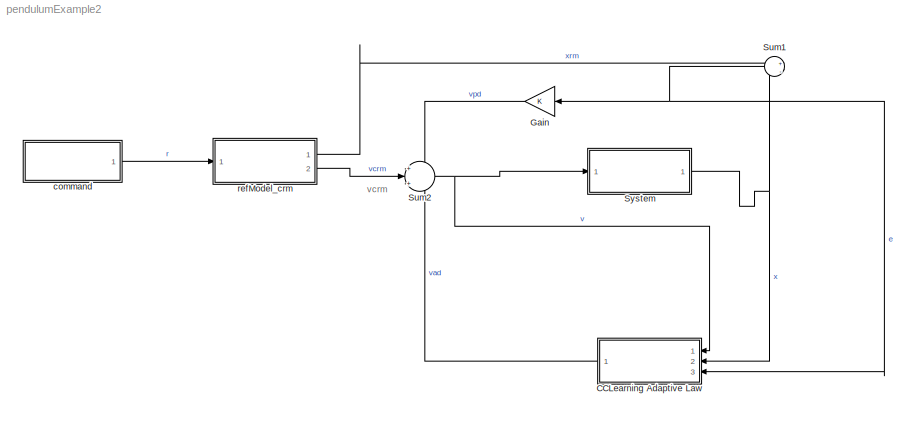
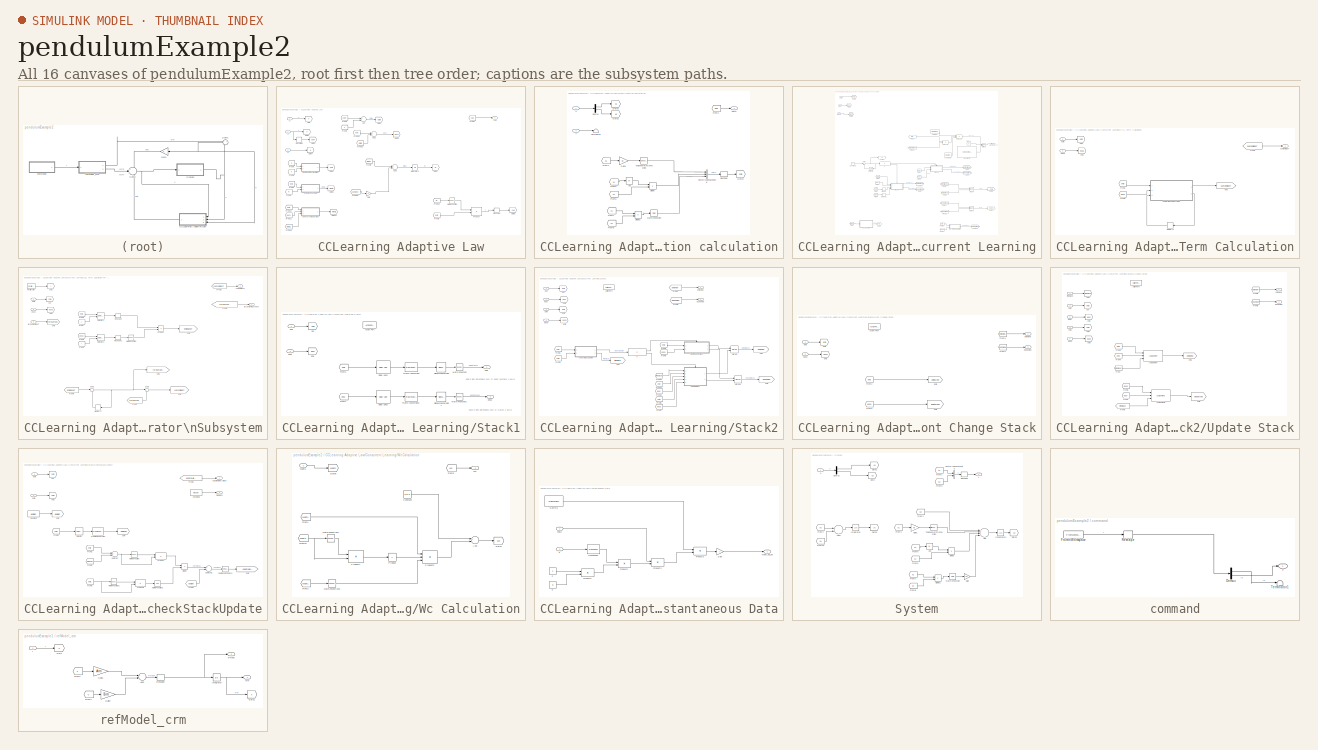
[diagram: thumbnail index - all 16 canvases of the model, root first then tree order]
MODEL pendulumExample2
KIND model
CONFIG InitFcn = initPendulum2
CONFIG StopFcn = plotlab
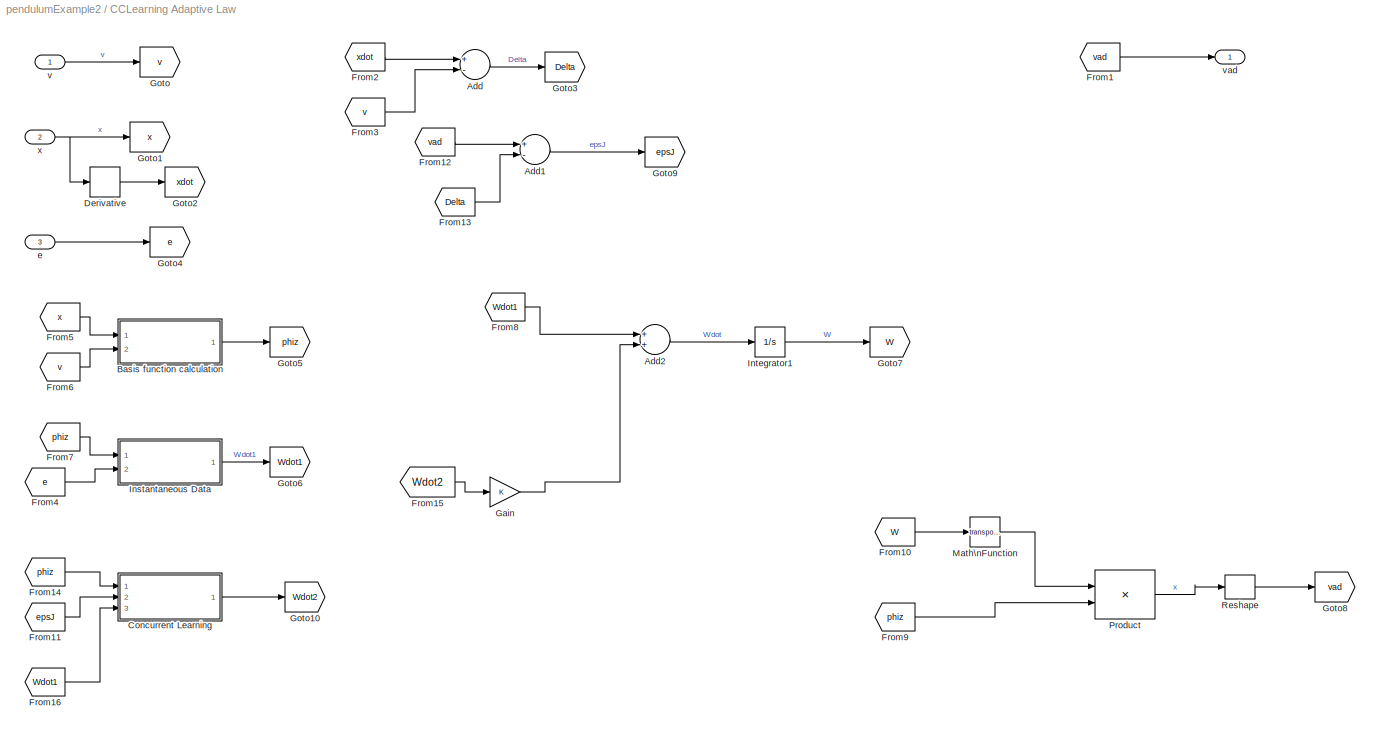
BLOCK [SubSystem] CCLearning Adaptive Law
  FunctionWithSeparateData = off
  MaskHideContents = off
  MinAlgLoopOccurrences = off
  Opaque = off
  Ports = [3, 1]
  PropExecContextOutsideSubsystem = off
  RTWSystemCode = Auto
  RequestExecContextInheritance = off
  TreatAsAtomicUnit = on
BLOCK [Sum] CCLearning Adaptive Law/Add
  InputSameDT = off
  Inputs = +-
  OutDataType = fixdt(1, 16)
  OutDataTypeMode = Inherit via internal rule
  OutDataTypeStr = Inherit: Inherit via internal rule
  OutScaling = 2^-10
  Ports = [2, 1]
  SaturateOnIntegerOverflow = off
BLOCK [Sum] CCLearning Adaptive Law/Add1
  InputSameDT = off
  Inputs = +-
  OutDataType = fixdt(1, 16)
  OutDataTypeMode = Inherit via internal rule
  OutDataTypeStr = Inherit: Inherit via internal rule
  OutScaling = 2^-10
  Ports = [2, 1]
  SaturateOnIntegerOverflow = off
BLOCK [Sum] CCLearning Adaptive Law/Add2
  InputSameDT = off
  OutDataType = fixdt(1, 16)
  OutDataTypeMode = Inherit via internal rule
  OutDataTypeStr = Inherit: Inherit via internal rule
  OutScaling = 2^-10
  Ports = [2, 1]
  SaturateOnIntegerOverflow = off
BLOCK [SubSystem] CCLearning Adaptive Law/Basis function calculation
  FunctionWithSeparateData = off
  MaskHideContents = off
  MinAlgLoopOccurrences = off
  Opaque = off
  Ports = [2, 1]
  PropExecContextOutsideSubsystem = off
  RTWSystemCode = Auto
  RequestExecContextInheritance = off
  TreatAsAtomicUnit = on
BLOCK [Abs] CCLearning Adaptive Law/Basis function calculation/Abs
  OutDataType = fixdt(1, 16)
  OutScaling = 2^0
  SaturateOnIntegerOverflow = off
BLOCK [Demux] CCLearning Adaptive Law/Basis function calculation/Demux
  DisplayOption = bar
  Outputs = 2
  Ports = [1, 2]
BLOCK [Product] CCLearning Adaptive Law/Basis function calculation/Divide
  InputSameDT = off
  Inputs = **
  OutDataType = fixdt(1, 16)
  OutDataTypeMode = Inherit via internal rule
  OutDataTypeStr = Inherit: Inherit via internal rule
  OutScaling = 2^-10
  Ports = [2, 1]
  RndMeth = Floor
  SaturateOnIntegerOverflow = off
BLOCK [Product] CCLearning Adaptive Law/Basis function calculation/Divide1
  InputSameDT = off
  Inputs = **
  OutDataType = fixdt(1, 16)
  OutDataTypeMode = Inherit via internal rule
  OutDataTypeStr = Inherit: Inherit via internal rule
  OutScaling = 2^-10
  Ports = [2, 1]
  RndMeth = Floor
  SaturateOnIntegerOverflow = off
BLOCK [From] CCLearning Adaptive Law/Basis function calculation/From1
  GotoTag = phiz
BLOCK [From] CCLearning Adaptive Law/Basis function calculation/From3
  GotoTag = x1
BLOCK [From] CCLearning Adaptive Law/Basis function calculation/From5
  GotoTag = x1
BLOCK [From] CCLearning Adaptive Law/Basis function calculation/From6
  GotoTag = x1
BLOCK [From] CCLearning Adaptive Law/Basis function calculation/From7
  GotoTag = x1
BLOCK [From] CCLearning Adaptive Law/Basis function calculation/From8
  GotoTag = x2
BLOCK [Gain] CCLearning Adaptive Law/Basis function calculation/Gain1
  Gain = pi
  OutDataType = fixdt(1, 16)
  OutDataTypeMode = Inherit via internal rule
  OutDataTypeStr = Inherit: Inherit via internal rule
  OutScaling = 2^0
  ParamDataTypeStr = Inherit: Inherit via internal rule
  ParameterDataType = fixdt(1, 16)
  ParameterDataTypeMode = Inherit via internal rule
  ParameterScaling = 2^0
  SaturateOnIntegerOverflow = off
BLOCK [Goto] CCLearning Adaptive Law/Basis function calculation/Goto1
  GotoTag = x1
  TagVisibility = local
BLOCK [Goto] CCLearning Adaptive Law/Basis function calculation/Goto2
  GotoTag = x2
  TagVisibility = local
BLOCK [Goto] CCLearning Adaptive Law/Basis function calculation/Goto3
  GotoTag = phiz
  TagVisibility = local
BLOCK [Math] CCLearning Adaptive Law/Basis function calculation/Math\nFunction
  OutDataType = fixdt(1, 16)
  OutScaling = 2^0
  Ports = [1, 1]
BLOCK [Reshape] CCLearning Adaptive Law/Basis function calculation/Reshape
  OutputDimensionality = Column vector (2-D)
  Ports = [1, 1]
BLOCK [Terminator] CCLearning Adaptive Law/Basis function calculation/Terminator
BLOCK [Trigonometry] CCLearning Adaptive Law/Basis function calculation/Trigonometric\nFunction
  Ports = [1, 1]
BLOCK [Concatenate] CCLearning Adaptive Law/Basis function calculation/Vector\nConcatenate
  Mode = Vector
  NumInputs = 3
  Ports = [3, 1]
BLOCK [Outport] CCLearning Adaptive Law/Basis function calculation/phi(z)
  IconDisplay = Port number
  OutDataType = fixdt(1, 16)
  OutScaling = 2^0
BLOCK [Inport] CCLearning Adaptive Law/Basis function calculation/v
  IconDisplay = Port number
  OutDataType = fixdt(1, 16)
  OutScaling = 2^0
  Port = 2
BLOCK [Inport] CCLearning Adaptive Law/Basis function calculation/x
  IconDisplay = Port number
  OutDataType = fixdt(1, 16)
  OutScaling = 2^0
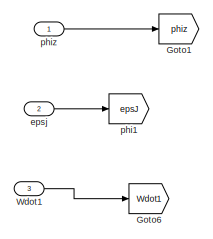
[diagram: CCLearning Adaptive Law/Concurrent Learning - part 1/3, top left region]
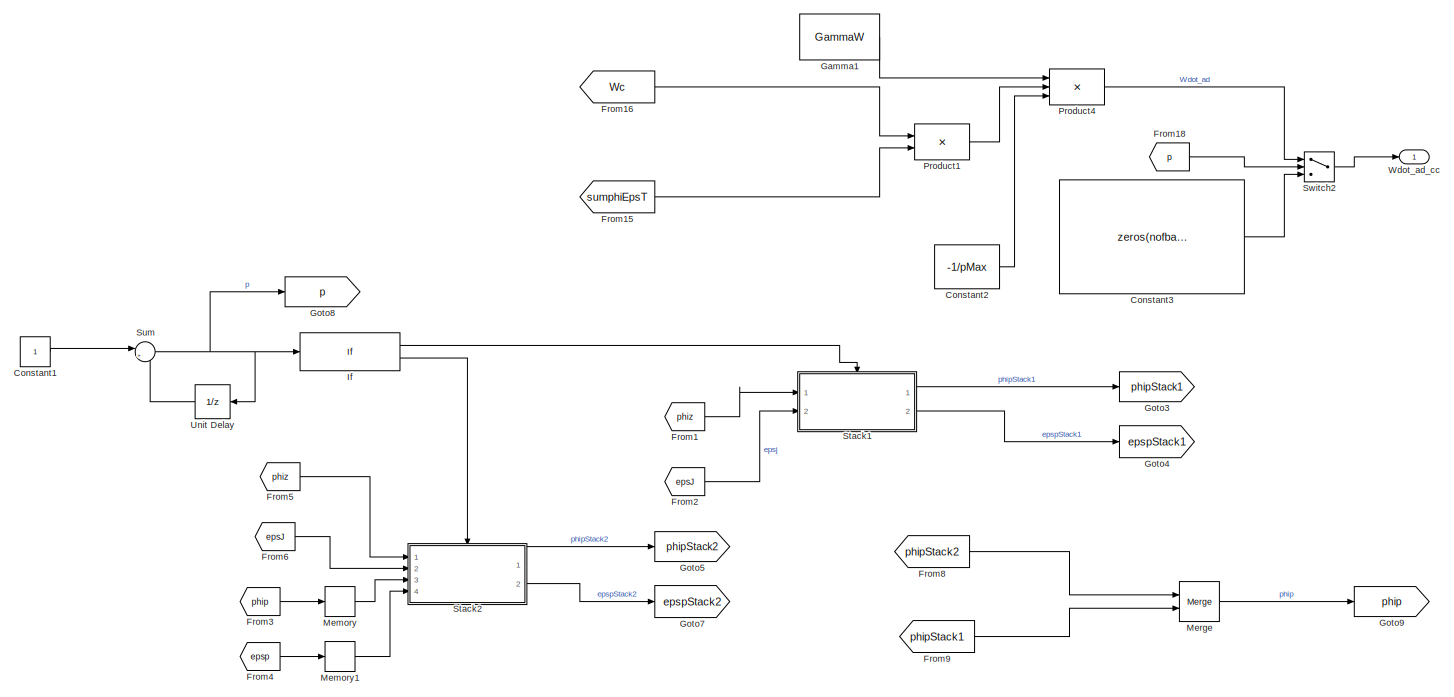
[diagram: CCLearning Adaptive Law/Concurrent Learning - part 2/3, full width, middle band]
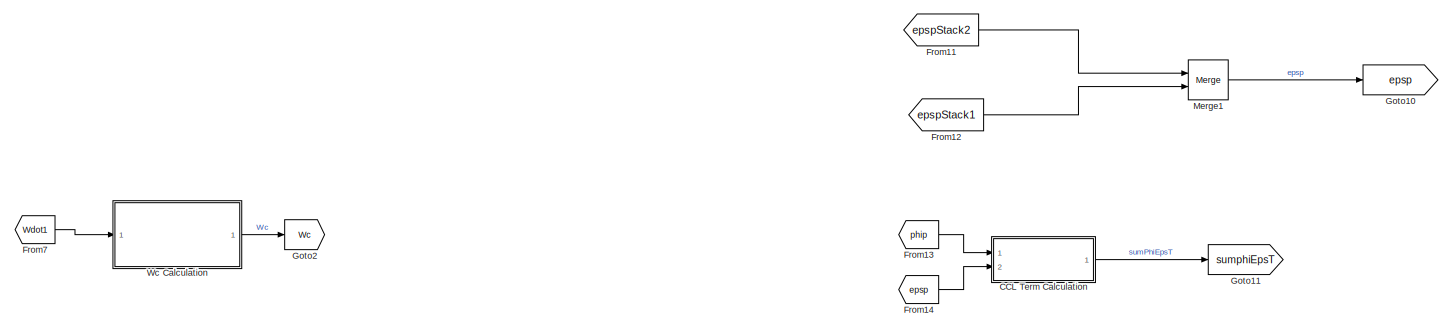
[diagram: CCLearning Adaptive Law/Concurrent Learning - part 3/3, full width, bottom band]
BLOCK [SubSystem] CCLearning Adaptive Law/Concurrent Learning
  FunctionWithSeparateData = off
  MaskHideContents = off
  MinAlgLoopOccurrences = off
  Opaque = off
  Ports = [3, 1]
  PropExecContextOutsideSubsystem = off
  RTWSystemCode = Auto
  RequestExecContextInheritance = off
  TreatAsAtomicUnit = on
BLOCK [SubSystem] CCLearning Adaptive Law/Concurrent Learning/CCL Term Calculation
  FunctionWithSeparateData = off
  MaskHideContents = off
  MinAlgLoopOccurrences = off
  Opaque = off
  Ports = [2, 1]
  PropExecContextOutsideSubsystem = off
  RTWSystemCode = Auto
  RequestExecContextInheritance = off
  TreatAsAtomicUnit = on
BLOCK [SubSystem] CCLearning Adaptive Law/Concurrent Learning/CCL Term Calculation/For Iterator\nSubsystem
  FunctionWithSeparateData = off
  MaskHideContents = off
  MinAlgLoopOccurrences = off
  Opaque = off
  Ports = [3, 2]
  PropExecContextOutsideSubsystem = off
  RTWSystemCode = Auto
  RequestExecContextInheritance = off
  TreatAsAtomicUnit = on
BLOCK [ForIterator] CCLearning Adaptive Law/Concurrent Learning/CCL Term Calculation/For Iterator\nSubsystem/For Iterator
  IterationLimit = pMax
  Ports = [0, 1]
BLOCK [From] CCLearning Adaptive Law/Concurrent Learning/CCL Term Calculation/For Iterator\nSubsystem/From
  GotoTag = i
BLOCK [From] CCLearning Adaptive Law/Concurrent Learning/CCL Term Calculation/For Iterator\nSubsystem/From1
  GotoTag = i
BLOCK [From] CCLearning Adaptive Law/Concurrent Learning/CCL Term Calculation/For Iterator\nSubsystem/From2
  GotoTag = epsp
BLOCK [From] CCLearning Adaptive Law/Concurrent Learning/CCL Term Calculation/For Iterator\nSubsystem/From3
  GotoTag = sumphiEpsT
BLOCK [From] CCLearning Adaptive Law/Concurrent Learning/CCL Term Calculation/For Iterator\nSubsystem/From4
  GotoTag = phip
BLOCK [From] CCLearning Adaptive Law/Concurrent Learning/CCL Term Calculation/For Iterator\nSubsystem/From5
  GotoTag = phipEpspT
BLOCK [From] CCLearning Adaptive Law/Concurrent Learning/CCL Term Calculation/For Iterator\nSubsystem/From6
  GotoTag = forSumphiEpsTnext
BLOCK [From] CCLearning Adaptive Law/Concurrent Learning/CCL Term Calculation/For Iterator\nSubsystem/From7
  GotoTag = forSumphiEpsT
BLOCK [Math] CCLearning Adaptive Law/Concurrent Learning/CCL Term Calculation/For Iterator\nSubsystem/Math\nFunction
  Operator = transpose
  OutDataType = fixdt(1, 16)
  OutScaling = 2^0
  Ports = [1, 1]
BLOCK [Memory] CCLearning Adaptive Law/Concurrent Learning/CCL Term Calculation/For Iterator\nSubsystem/Memory2
  InheritSampleTime = on
  LinearizeAsDelay = on
  LinearizeMemory = on
  X0 = zeros(size(W0))
BLOCK [Product] CCLearning Adaptive Law/Concurrent Learning/CCL Term Calculation/For Iterator\nSubsystem/Product
  InputSameDT = off
  Multiplication = Matrix(*)
  OutDataType = fixdt(1, 16)
  OutDataTypeMode = Inherit via internal rule
  OutDataTypeStr = Inherit: Inherit via internal rule
  OutScaling = 2^0
  Ports = [2, 1]
  SaturateOnIntegerOverflow = off
BLOCK [Reshape] CCLearning Adaptive Law/Concurrent Learning/CCL Term Calculation/For Iterator\nSubsystem/Reshape
  OutputDimensionality = Column vector (2-D)
  Ports = [1, 1]
BLOCK [Reshape] CCLearning Adaptive Law/Concurrent Learning/CCL Term Calculation/For Iterator\nSubsystem/Reshape1
  OutputDimensionality = Column vector (2-D)
  Ports = [1, 1]
BLOCK [Selector] CCLearning Adaptive Law/Concurrent Learning/CCL Term Calculation/For Iterator\nSubsystem/Selector1
  IndexOptions = Select all,Index vector (port)
  Indices = [1 2 3],1
  InputPortWidth = 3
  NumberOfDimensions = 2
  OutputSizes = 1,1
  Ports = [2, 1]
BLOCK [Selector] CCLearning Adaptive Law/Concurrent Learning/CCL Term Calculation/For Iterator\nSubsystem/Selector2
  IndexOptions = Select all,Index vector (port)
  Indices = [1 2 3],1
  InputPortWidth = 3
  NumberOfDimensions = 2
  OutputSizes = 1,1
  Ports = [2, 1]
BLOCK [Sum] CCLearning Adaptive Law/Concurrent Learning/CCL Term Calculation/For Iterator\nSubsystem/Sum1
  IconShape = round
  InputSameDT = off
  Inputs = |++
  OutDataType = fixdt(1, 16)
  OutDataTypeMode = Inherit via internal rule
  OutDataTypeStr = Inherit: Inherit via internal rule
  OutScaling = 2^0
  Ports = [2, 1]
  SaturateOnIntegerOverflow = off
BLOCK [Sum] CCLearning Adaptive Law/Concurrent Learning/CCL Term Calculation/For Iterator\nSubsystem/Sum2
  IconShape = round
  InputSameDT = off
  Inputs = |+-
  OutDataType = fixdt(1, 16)
  OutDataTypeMode = Inherit via internal rule
  OutDataTypeStr = Inherit: Inherit via internal rule
  OutScaling = 2^0
  Ports = [2, 1]
  SaturateOnIntegerOverflow = off
BLOCK [Inport] CCLearning Adaptive Law/Concurrent Learning/CCL Term Calculation/For Iterator\nSubsystem/epsp
  IconDisplay = Port number
  OutDataType = fixdt(1, 16)
  OutScaling = 2^0
  Port = 2
BLOCK [Inport] CCLearning Adaptive Law/Concurrent Learning/CCL Term Calculation/For Iterator\nSubsystem/forSumphiEpsT
  IconDisplay = Port number
  OutDataType = fixdt(1, 16)
  OutScaling = 2^0
  Port = 3
BLOCK [Outport] CCLearning Adaptive Law/Concurrent Learning/CCL Term Calculation/For Iterator\nSubsystem/forSumphiEpsTnext
  IconDisplay = Port number
  OutDataType = fixdt(1, 16)
  OutScaling = 2^0
  Port = 2
BLOCK [Goto] CCLearning Adaptive Law/Concurrent Learning/CCL Term Calculation/For Iterator\nSubsystem/phi
  GotoTag = phip
  TagVisibility = local
BLOCK [Goto] CCLearning Adaptive Law/Concurrent Learning/CCL Term Calculation/For Iterator\nSubsystem/phi1
  GotoTag = epsp
  TagVisibility = local
BLOCK [Goto] CCLearning Adaptive Law/Concurrent Learning/CCL Term Calculation/For Iterator\nSubsystem/phi2
  GotoTag = i
  TagVisibility = local
BLOCK [Goto] CCLearning Adaptive Law/Concurrent Learning/CCL Term Calculation/For Iterator\nSubsystem/phi3
  GotoTag = phipEpspT
  TagVisibility = local
BLOCK [Goto] CCLearning Adaptive Law/Concurrent Learning/CCL Term Calculation/For Iterator\nSubsystem/phi4
  GotoTag = sumphiEpsT
  TagVisibility = local
BLOCK [Goto] CCLearning Adaptive Law/Concurrent Learning/CCL Term Calculation/For Iterator\nSubsystem/phi5
  GotoTag = forSumphiEpsTnext
  TagVisibility = local
BLOCK [Goto] CCLearning Adaptive Law/Concurrent Learning/CCL Term Calculation/For Iterator\nSubsystem/phi6
  GotoTag = forSumphiEpsT
  TagVisibility = local
BLOCK [Inport] CCLearning Adaptive Law/Concurrent Learning/CCL Term Calculation/For Iterator\nSubsystem/phip
  IconDisplay = Port number
  OutDataType = fixdt(1, 16)
  OutScaling = 2^0
BLOCK [Outport] CCLearning Adaptive Law/Concurrent Learning/CCL Term Calculation/For Iterator\nSubsystem/sumphiEpsT
  IconDisplay = Port number
  OutDataType = fixdt(1, 16)
  OutScaling = 2^0
BLOCK [From] CCLearning Adaptive Law/Concurrent Learning/CCL Term Calculation/From1
  GotoTag = phip
BLOCK [From] CCLearning Adaptive Law/Concurrent Learning/CCL Term Calculation/From2
  GotoTag = sumphiEpsT
BLOCK [From] CCLearning Adaptive Law/Concurrent Learning/CCL Term Calculation/From3
  GotoTag = epsp
BLOCK [Memory] CCLearning Adaptive Law/Concurrent Learning/CCL Term Calculation/Memory2
  InheritSampleTime = on
  LinearizeAsDelay = on
  LinearizeMemory = on
  X0 = zeros(size(W0))
BLOCK [Inport] CCLearning Adaptive Law/Concurrent Learning/CCL Term Calculation/epsp
  IconDisplay = Port number
  OutDataType = fixdt(1, 16)
  OutScaling = 2^0
  Port = 2
BLOCK [Goto] CCLearning Adaptive Law/Concurrent Learning/CCL Term Calculation/phi1
  GotoTag = sumphiEpsT
  TagVisibility = local
BLOCK [Goto] CCLearning Adaptive Law/Concurrent Learning/CCL Term Calculation/phi2
  GotoTag = phip
  TagVisibility = local
BLOCK [Goto] CCLearning Adaptive Law/Concurrent Learning/CCL Term Calculation/phi3
  GotoTag = epsp
  TagVisibility = local
BLOCK [Inport] CCLearning Adaptive Law/Concurrent Learning/CCL Term Calculation/phip
  IconDisplay = Port number
  OutDataType = fixdt(1, 16)
  OutScaling = 2^0
BLOCK [Outport] CCLearning Adaptive Law/Concurrent Learning/CCL Term Calculation/sumphiEpsT
  IconDisplay = Port number
  OutDataType = fixdt(1, 16)
  OutScaling = 2^0
BLOCK [Constant] CCLearning Adaptive Law/Concurrent Learning/Constant1
  OutDataType = fixdt(1, 16)
  OutScaling = 2^0
  SampleTime = -1
BLOCK [Constant] CCLearning Adaptive Law/Concurrent Learning/Constant2
  OutDataType = fixdt(1, 16)
  OutScaling = 2^0
  Value = -1/pMax
BLOCK [Constant] CCLearning Adaptive Law/Concurrent Learning/Constant3
  OutDataType = fixdt(1, 16)
  OutScaling = 2^0
  SampleTime = -1
  Value = zeros(nofbasis,nofstates)
BLOCK [From] CCLearning Adaptive Law/Concurrent Learning/From1
  GotoTag = phiz
BLOCK [From] CCLearning Adaptive Law/Concurrent Learning/From11
  GotoTag = epspStack2
BLOCK [From] CCLearning Adaptive Law/Concurrent Learning/From12
  GotoTag = epspStack1
BLOCK [From] CCLearning Adaptive Law/Concurrent Learning/From13
  GotoTag = phip
BLOCK [From] CCLearning Adaptive Law/Concurrent Learning/From14
  GotoTag = epsp
BLOCK [From] CCLearning Adaptive Law/Concurrent Learning/From15
  GotoTag = sumphiEpsT
BLOCK [From] CCLearning Adaptive Law/Concurrent Learning/From16
  GotoTag = Wc
BLOCK [From] CCLearning Adaptive Law/Concurrent Learning/From18
  GotoTag = p
BLOCK [From] CCLearning Adaptive Law/Concurrent Learning/From2
  GotoTag = epsJ
BLOCK [From] CCLearning Adaptive Law/Concurrent Learning/From3
  GotoTag = phip
BLOCK [From] CCLearning Adaptive Law/Concurrent Learning/From4
  GotoTag = epsp
BLOCK [From] CCLearning Adaptive Law/Concurrent Learning/From5
  GotoTag = phiz
BLOCK [From] CCLearning Adaptive Law/Concurrent Learning/From6
  GotoTag = epsJ
BLOCK [From] CCLearning Adaptive Law/Concurrent Learning/From7
  GotoTag = Wdot1
BLOCK [From] CCLearning Adaptive Law/Concurrent Learning/From8
  GotoTag = phipStack2
BLOCK [From] CCLearning Adaptive Law/Concurrent Learning/From9
  GotoTag = phipStack1
BLOCK [Constant] CCLearning Adaptive Law/Concurrent Learning/Gamma1
  OutDataType = fixdt(1, 16)
  OutScaling = 2^0
  Value = GammaW
  VectorParams1D = off
BLOCK [Goto] CCLearning Adaptive Law/Concurrent Learning/Goto1
  GotoTag = phiz
  TagVisibility = local
BLOCK [Goto] CCLearning Adaptive Law/Concurrent Learning/Goto10
  GotoTag = epsp
  TagVisibility = local
BLOCK [Goto] CCLearning Adaptive Law/Concurrent Learning/Goto11
  GotoTag = sumphiEpsT
  TagVisibility = local
BLOCK [Goto] CCLearning Adaptive Law/Concurrent Learning/Goto2
  GotoTag = Wc
  TagVisibility = local
BLOCK [Goto] CCLearning Adaptive Law/Concurrent Learning/Goto3
  GotoTag = phipStack1
  TagVisibility = local
BLOCK [Goto] CCLearning Adaptive Law/Concurrent Learning/Goto4
  GotoTag = epspStack1
  TagVisibility = local
BLOCK [Goto] CCLearning Adaptive Law/Concurrent Learning/Goto5
  GotoTag = phipStack2
  TagVisibility = local
BLOCK [Goto] CCLearning Adaptive Law/Concurrent Learning/Goto6
  GotoTag = Wdot1
  TagVisibility = local
BLOCK [Goto] CCLearning Adaptive Law/Concurrent Learning/Goto7
  GotoTag = epspStack2
  TagVisibility = local
BLOCK [Goto] CCLearning Adaptive Law/Concurrent Learning/Goto8
  GotoTag = p
  TagVisibility = local
BLOCK [Goto] CCLearning Adaptive Law/Concurrent Learning/Goto9
  GotoTag = phip
  TagVisibility = local
BLOCK [If] CCLearning Adaptive Law/Concurrent Learning/If
  IfExpression = u1 <= pMax
  Ports = [1, 2]
BLOCK [Memory] CCLearning Adaptive Law/Concurrent Learning/Memory
  InheritSampleTime = on
  LinearizeAsDelay = on
  LinearizeMemory = on
  X0 = zeros(nofbasis,pMax)
BLOCK [Memory] CCLearning Adaptive Law/Concurrent Learning/Memory1
  InheritSampleTime = on
  LinearizeAsDelay = on
  LinearizeMemory = on
  X0 = zeros(nofstates,pMax)
BLOCK [Merge] CCLearning Adaptive Law/Concurrent Learning/Merge
  Ports = [2, 1]
BLOCK [Merge] CCLearning Adaptive Law/Concurrent Learning/Merge1
  Ports = [2, 1]
BLOCK [Product] CCLearning Adaptive Law/Concurrent Learning/Product1
  InputSameDT = off
  Multiplication = Matrix(*)
  OutDataType = fixdt(1, 16)
  OutDataTypeMode = Inherit via internal rule
  OutDataTypeStr = Inherit: Inherit via internal rule
  OutScaling = 2^0
  Ports = [2, 1]
  SaturateOnIntegerOverflow = off
BLOCK [Product] CCLearning Adaptive Law/Concurrent Learning/Product4
  InputSameDT = off
  Inputs = 3
  OutDataType = fixdt(1, 16)
  OutDataTypeMode = Inherit via internal rule
  OutDataTypeStr = Inherit: Inherit via internal rule
  OutScaling = 2^0
  Ports = [3, 1]
  SaturateOnIntegerOverflow = off
BLOCK [SubSystem] CCLearning Adaptive Law/Concurrent Learning/Stack1
  FunctionWithSeparateData = off
  MaskHideContents = off
  MinAlgLoopOccurrences = off
  Opaque = off
  Ports = [2, 2, 0, 0, 0, 0, 0, 1]
  PropExecContextOutsideSubsystem = off
  RTWSystemCode = Auto
  RequestExecContextInheritance = off
  TreatAsAtomicUnit = on
BLOCK [ActionPort] CCLearning Adaptive Law/Concurrent Learning/Stack1/Action Port
  ActionType = then
BLOCK [Reference] CCLearning Adaptive Law/Concurrent Learning/Stack1/Delay Line1  REF=dspbuff3/Delay Line
  Ports = [1, 1]
  SourceBlock = dspbuff3/Delay Line
  SourceType = Delay Line
  directfeed = on
  enable_output = off
  hold_output = off
  ic = 0
  siz = pMax
BLOCK [Reference] CCLearning Adaptive Law/Concurrent Learning/Stack1/Delay Line2  REF=dspbuff3/Delay Line
  Ports = [1, 1]
  SourceBlock = dspbuff3/Delay Line
  SourceType = Delay Line
  directfeed = on
  enable_output = off
  hold_output = off
  ic = 0
  siz = pMax
BLOCK [FrameConversion] CCLearning Adaptive Law/Concurrent Learning/Stack1/Frame Conversion
  OutFrame = Sample-based
  Ports = [1, 1]
BLOCK [FrameConversion] CCLearning Adaptive Law/Concurrent Learning/Stack1/Frame Conversion1
  OutFrame = Sample-based
  Ports = [1, 1]
BLOCK [From] CCLearning Adaptive Law/Concurrent Learning/Stack1/From1
  GotoTag = epsj
BLOCK [From] CCLearning Adaptive Law/Concurrent Learning/Stack1/From2
  GotoTag = phiz
BLOCK [Math] CCLearning Adaptive Law/Concurrent Learning/Stack1/Math\nFunction
  Operator = transpose
  OutDataType = fixdt(1, 16)
  OutScaling = 2^0
  Ports = [1, 1]
BLOCK [Math] CCLearning Adaptive Law/Concurrent Learning/Stack1/Math\nFunction1
  Operator = transpose
  OutDataType = fixdt(1, 16)
  OutScaling = 2^0
  Ports = [1, 1]
BLOCK [SignalConversion] CCLearning Adaptive Law/Concurrent Learning/Stack1/Signal\nConversion
  ConversionOutput = Contiguous copy
BLOCK [SignalConversion] CCLearning Adaptive Law/Concurrent Learning/Stack1/Signal\nConversion1
  ConversionOutput = Contiguous copy
BLOCK [Inport] CCLearning Adaptive Law/Concurrent Learning/Stack1/epsj
  IconDisplay = Port number
  OutDataType = fixdt(1, 16)
  OutScaling = 2^0
  Port = 2
BLOCK [Outport] CCLearning Adaptive Law/Concurrent Learning/Stack1/epsp
  IconDisplay = Port number
  OutDataType = fixdt(1, 16)
  OutScaling = 2^0
  Port = 2
BLOCK [Goto] CCLearning Adaptive Law/Concurrent Learning/Stack1/phi
  GotoTag = phiz
  TagVisibility = local
BLOCK [Goto] CCLearning Adaptive Law/Concurrent Learning/Stack1/phi1
  GotoTag = epsj
  TagVisibility = local
BLOCK [Outport] CCLearning Adaptive Law/Concurrent Learning/Stack1/phip
  IconDisplay = Port number
  OutDataType = fixdt(1, 16)
  OutScaling = 2^0
BLOCK [Inport] CCLearning Adaptive Law/Concurrent Learning/Stack1/phiz
  IconDisplay = Port number
  OutDataType = fixdt(1, 16)
  OutScaling = 2^0
BLOCK [SubSystem] CCLearning Adaptive Law/Concurrent Learning/Stack2
  FunctionWithSeparateData = off
  MaskHideContents = off
  MinAlgLoopOccurrences = off
  Opaque = off
  Ports = [4, 2, 0, 0, 0, 0, 0, 1]
  PropExecContextOutsideSubsystem = off
  RTWSystemCode = Auto
  RequestExecContextInheritance = off
  TreatAsAtomicUnit = on
BLOCK [ActionPort] CCLearning Adaptive Law/Concurrent Learning/Stack2/Action Port
  ActionType = else
BLOCK [SubSystem] CCLearning Adaptive Law/Concurrent Learning/Stack2/Dont Change Stack
  FunctionWithSeparateData = off
  MaskHideContents = off
  MinAlgLoopOccurrences = off
  Opaque = off
  Ports = [2, 2, 0, 0, 0, 0, 0, 1]
  PropExecContextOutsideSubsystem = off
  RTWSystemCode = Auto
  RequestExecContextInheritance = off
  TreatAsAtomicUnit = on
BLOCK [ActionPort] CCLearning Adaptive Law/Concurrent Learning/Stack2/Dont Change Stack/Action Port
  ActionType = then
BLOCK [From] CCLearning Adaptive Law/Concurrent Learning/Stack2/Dont Change Stack/From2
  GotoTag = phip
BLOCK [From] CCLearning Adaptive Law/Concurrent Learning/Stack2/Dont Change Stack/From6
  GotoTag = epsp
BLOCK [From] CCLearning Adaptive Law/Concurrent Learning/Stack2/Dont Change Stack/From8
  GotoTag = phipNew
BLOCK [From] CCLearning Adaptive Law/Concurrent Learning/Stack2/Dont Change Stack/From9
  GotoTag = epspNew
BLOCK [Inport] CCLearning Adaptive Law/Concurrent Learning/Stack2/Dont Change Stack/epsp
  IconDisplay = Port number
  OutDataType = fixdt(1, 16)
  OutScaling = 2^0
  Port = 2
BLOCK [Outport] CCLearning Adaptive Law/Concurrent Learning/Stack2/Dont Change Stack/epspNew
  IconDisplay = Port number
  OutDataType = fixdt(1, 16)
  OutScaling = 2^0
  Port = 2
BLOCK [Goto] CCLearning Adaptive Law/Concurrent Learning/Stack2/Dont Change Stack/phi2
  GotoTag = phip
  TagVisibility = local
BLOCK [Goto] CCLearning Adaptive Law/Concurrent Learning/Stack2/Dont Change Stack/phi3
  GotoTag = epsp
  TagVisibility = local
BLOCK [Goto] CCLearning Adaptive Law/Concurrent Learning/Stack2/Dont Change Stack/phi5
  GotoTag = phipNew
  TagVisibility = local
BLOCK [Goto] CCLearning Adaptive Law/Concurrent Learning/Stack2/Dont Change Stack/phi6
  GotoTag = epspNew
  TagVisibility = local
BLOCK [Inport] CCLearning Adaptive Law/Concurrent Learning/Stack2/Dont Change Stack/phip
  IconDisplay = Port number
  OutDataType = fixdt(1, 16)
  OutScaling = 2^0
BLOCK [Outport] CCLearning Adaptive Law/Concurrent Learning/Stack2/Dont Change Stack/phipNew
  IconDisplay = Port number
  OutDataType = fixdt(1, 16)
  OutScaling = 2^0
BLOCK [From] CCLearning Adaptive Law/Concurrent Learning/Stack2/From1
  GotoTag = phiz
BLOCK [From] CCLearning Adaptive Law/Concurrent Learning/Stack2/From10
  GotoTag = phiz
BLOCK [From] CCLearning Adaptive Law/Concurrent Learning/Stack2/From11
  GotoTag = epsj
BLOCK [From] CCLearning Adaptive Law/Concurrent Learning/Stack2/From12
  GotoTag = iReplace
BLOCK [From] CCLearning Adaptive Law/Concurrent Learning/Stack2/From3
  GotoTag = phip
BLOCK [From] CCLearning Adaptive Law/Concurrent Learning/Stack2/From4
  GotoTag = phip
BLOCK [From] CCLearning Adaptive Law/Concurrent Learning/Stack2/From5
  GotoTag = epsp
BLOCK [From] CCLearning Adaptive Law/Concurrent Learning/Stack2/From6
  GotoTag = phip
BLOCK [From] CCLearning Adaptive Law/Concurrent Learning/Stack2/From7
  GotoTag = epsp
BLOCK [From] CCLearning Adaptive Law/Concurrent Learning/Stack2/From8
  GotoTag = phipNew
BLOCK [From] CCLearning Adaptive Law/Concurrent Learning/Stack2/From9
  GotoTag = epspNew
BLOCK [If] CCLearning Adaptive Law/Concurrent Learning/Stack2/If
  IfExpression = u1 == 1
  Ports = [1, 2]
BLOCK [Merge] CCLearning Adaptive Law/Concurrent Learning/Stack2/Merge
  Ports = [2, 1]
BLOCK [Merge] CCLearning Adaptive Law/Concurrent Learning/Stack2/Merge1
  Ports = [2, 1]
BLOCK [SubSystem] CCLearning Adaptive Law/Concurrent Learning/Stack2/Update Stack
  FunctionWithSeparateData = off
  MaskHideContents = off
  MinAlgLoopOccurrences = off
  Opaque = off
  Ports = [5, 2, 0, 0, 0, 0, 0, 1]
  PropExecContextOutsideSubsystem = off
  RTWSystemCode = Auto
  RequestExecContextInheritance = off
  TreatAsAtomicUnit = on
BLOCK [ActionPort] CCLearning Adaptive Law/Concurrent Learning/Stack2/Update Stack/Action Port
  ActionType = else
BLOCK [Assignment] CCLearning Adaptive Law/Concurrent Learning/Stack2/Update Stack/Assignment
  IndexOptions = Assign all,Index vector (port)
  Indices = 1,1
  NumberOfDimensions = 2
  OutputSizes = 1,1
  Ports = [3, 1]
BLOCK [Assignment] CCLearning Adaptive Law/Concurrent Learning/Stack2/Update Stack/Assignment1
  IndexOptions = Assign all,Index vector (port)
  Indices = 1,1
  NumberOfDimensions = 2
  OutputSizes = 1,1
  Ports = [3, 1]
BLOCK [From] CCLearning Adaptive Law/Concurrent Learning/Stack2/Update Stack/From
  GotoTag = iReplace
BLOCK [From] CCLearning Adaptive Law/Concurrent Learning/Stack2/Update Stack/From2
  GotoTag = phip
BLOCK [From] CCLearning Adaptive Law/Concurrent Learning/Stack2/Update Stack/From4
  GotoTag = phiz
BLOCK [From] CCLearning Adaptive Law/Concurrent Learning/Stack2/Update Stack/From5
  GotoTag = iReplace
BLOCK [From] CCLearning Adaptive Law/Concurrent Learning/Stack2/Update Stack/From6
  GotoTag = epsp
BLOCK [From] CCLearning Adaptive Law/Concurrent Learning/Stack2/Update Stack/From7
  GotoTag = epsj
BLOCK [From] CCLearning Adaptive Law/Concurrent Learning/Stack2/Update Stack/From8
  GotoTag = phipNew
BLOCK [From] CCLearning Adaptive Law/Concurrent Learning/Stack2/Update Stack/From9
  GotoTag = epspNew
BLOCK [Inport] CCLearning Adaptive Law/Concurrent Learning/Stack2/Update Stack/epsj
  IconDisplay = Port number
  OutDataType = fixdt(1, 16)
  OutScaling = 2^0
  Port = 3
BLOCK [Inport] CCLearning Adaptive Law/Concurrent Learning/Stack2/Update Stack/epsp
  IconDisplay = Port number
  OutDataType = fixdt(1, 16)
  OutScaling = 2^0
  Port = 5
BLOCK [Outport] CCLearning Adaptive Law/Concurrent Learning/Stack2/Update Stack/epspNew
  IconDisplay = Port number
  OutDataType = fixdt(1, 16)
  OutScaling = 2^0
  Port = 2
BLOCK [Inport] CCLearning Adaptive Law/Concurrent Learning/Stack2/Update Stack/iReplace
  IconDisplay = Port number
  OutDataType = fixdt(1, 16)
  OutScaling = 2^0
BLOCK [Goto] CCLearning Adaptive Law/Concurrent Learning/Stack2/Update Stack/phi
  GotoTag = phiz
  TagVisibility = local
BLOCK [Goto] CCLearning Adaptive Law/Concurrent Learning/Stack2/Update Stack/phi1
  GotoTag = epsj
  TagVisibility = local
BLOCK [Goto] CCLearning Adaptive Law/Concurrent Learning/Stack2/Update Stack/phi2
  GotoTag = phip
  TagVisibility = local
BLOCK [Goto] CCLearning Adaptive Law/Concurrent Learning/Stack2/Update Stack/phi3
  GotoTag = epsp
  TagVisibility = local
BLOCK [Goto] CCLearning Adaptive Law/Concurrent Learning/Stack2/Update Stack/phi4
  GotoTag = iReplace
  TagVisibility = local
BLOCK [Goto] CCLearning Adaptive Law/Concurrent Learning/Stack2/Update Stack/phi5
  GotoTag = phipNew
  TagVisibility = local
BLOCK [Goto] CCLearning Adaptive Law/Concurrent Learning/Stack2/Update Stack/phi6
  GotoTag = epspNew
  TagVisibility = local
BLOCK [Inport] CCLearning Adaptive Law/Concurrent Learning/Stack2/Update Stack/phip
  IconDisplay = Port number
  OutDataType = fixdt(1, 16)
  OutScaling = 2^0
  Port = 4
BLOCK [Outport] CCLearning Adaptive Law/Concurrent Learning/Stack2/Update Stack/phipNew
  IconDisplay = Port number
  OutDataType = fixdt(1, 16)
  OutScaling = 2^0
BLOCK [Inport] CCLearning Adaptive Law/Concurrent Learning/Stack2/Update Stack/phiz
  IconDisplay = Port number
  OutDataType = fixdt(1, 16)
  OutScaling = 2^0
  Port = 2
BLOCK [SubSystem] CCLearning Adaptive Law/Concurrent Learning/Stack2/checkStackUpdate
  FunctionWithSeparateData = off
  MaskHideContents = off
  MinAlgLoopOccurrences = off
  Opaque = off
  Ports = [2, 2]
  PropExecContextOutsideSubsystem = off
  RTWSystemCode = Auto
  RequestExecContextInheritance = off
  TreatAsAtomicUnit = on
BLOCK [Reference] CCLearning Adaptive Law/Concurrent Learning/Stack2/checkStackUpdate/Compare\nTo Zero  REF=simulink/Logic and Bit\nOperations/Compare\nTo Zero
  FunctionWithSeparateData = off
  LogicOutDataTypeMode = uint8
  Ports = [1, 1]
  RTWMemSecDataConstants = Inherit from model
  RTWMemSecDataInternal = Inherit from model
  RTWMemSecDataParameters = Inherit from model
  RTWMemSecFuncExecute = Inherit from model
  RTWMemSecFuncInitTerm = Inherit from model
  ShowPortLabels = FromPortIcon
  SourceBlock = simulink/Logic and Bit\nOperations/Compare\nTo Zero
  SourceType = Compare To Zero
  SystemSampleTime = -1
  ZeroCross = off
  relop = >=
BLOCK [Constant] CCLearning Adaptive Law/Concurrent Learning/Stack2/checkStackUpdate/Constant
  OutDataType = fixdt(1, 16)
  OutScaling = 2^0
  SampleTime = -1
  Value = epsilon
BLOCK [Constant] CCLearning Adaptive Law/Concurrent Learning/Stack2/checkStackUpdate/Constant1
  OutDataType = fixdt(1, 16)
  OutScaling = 2^0
  SampleTime = -1
  Value = pMax
BLOCK [Product] CCLearning Adaptive Law/Concurrent Learning/Stack2/checkStackUpdate/Divide
  InputSameDT = off
  Inputs = */
  OutDataType = fixdt(1, 16)
  OutDataTypeMode = Inherit via internal rule
  OutDataTypeStr = Inherit: Inherit via internal rule
  OutScaling = 2^-10
  Ports = [2, 1]
  RndMeth = Floor
  SaturateOnIntegerOverflow = off
BLOCK [FrameConversion] CCLearning Adaptive Law/Concurrent Learning/Stack2/checkStackUpdate/Frame Conversion
  OutFrame = Sample-based
  Ports = [1, 1]
BLOCK [From] CCLearning Adaptive Law/Concurrent Learning/Stack2/checkStackUpdate/From1
  GotoTag = phiz
BLOCK [From] CCLearning Adaptive Law/Concurrent Learning/Stack2/checkStackUpdate/From2
  GotoTag = phipvec
BLOCK [From] CCLearning Adaptive Law/Concurrent Learning/Stack2/checkStackUpdate/From3
  GotoTag = phiz
BLOCK [From] CCLearning Adaptive Law/Concurrent Learning/Stack2/checkStackUpdate/From4
  GotoTag = epsilon
BLOCK [From] CCLearning Adaptive Law/Concurrent Learning/Stack2/checkStackUpdate/From5
  GotoTag = phip
BLOCK [From] CCLearning Adaptive Law/Concurrent Learning/Stack2/checkStackUpdate/From6
  GotoTag = updateHistoryStack
BLOCK [Math] CCLearning Adaptive Law/Concurrent Learning/Stack2/checkStackUpdate/Math\nFunction
  Operator = transpose
  OutDataType = fixdt(1, 16)
  OutScaling = 2^0
  Ports = [1, 1]
BLOCK [Math] CCLearning Adaptive Law/Concurrent Learning/Stack2/checkStackUpdate/Math\nFunction1
  Operator = transpose
  OutDataType = fixdt(1, 16)
  OutScaling = 2^0
  Ports = [1, 1]
BLOCK [Math] CCLearning Adaptive Law/Concurrent Learning/Stack2/checkStackUpdate/Math\nFunction2
  Operator = sqrt
  OutDataType = fixdt(1, 16)
  OutScaling = 2^0
  Ports = [1, 1]
BLOCK [Product] CCLearning Adaptive Law/Concurrent Learning/Stack2/checkStackUpdate/Product
  InputSameDT = off
  Multiplication = Matrix(*)
  OutDataType = fixdt(1, 16)
  OutDataTypeMode = Inherit via internal rule
  OutDataTypeStr = Inherit: Inherit via internal rule
  OutScaling = 2^0
  Ports = [2, 1]
  SaturateOnIntegerOverflow = off
BLOCK [Product] CCLearning Adaptive Law/Concurrent Learning/Stack2/checkStackUpdate/Product1
  InputSameDT = off
  Multiplication = Matrix(*)
  OutDataType = fixdt(1, 16)
  OutDataTypeMode = Inherit via internal rule
  OutDataTypeStr = Inherit: Inherit via internal rule
  OutScaling = 2^0
  Ports = [2, 1]
  SaturateOnIntegerOverflow = off
BLOCK [Selector] CCLearning Adaptive Law/Concurrent Learning/Stack2/checkStackUpdate/Selector
  IndexOptions = Select all,Index vector (dialog)
  Indices = pMax,pMax
  InputPortWidth = 3
  NumberOfDimensions = 2
  OutputSizes = 1,1
  Ports = [1, 1]
BLOCK [Sum] CCLearning Adaptive Law/Concurrent Learning/Stack2/checkStackUpdate/Subtract
  InputSameDT = off
  Inputs = +-
  OutDataType = fixdt(1, 16)
  OutDataTypeMode = Inherit via internal rule
  OutDataTypeStr = Inherit: Inherit via internal rule
  OutScaling = 2^-10
  Ports = [2, 1]
  SaturateOnIntegerOverflow = off
BLOCK [Sum] CCLearning Adaptive Law/Concurrent Learning/Stack2/checkStackUpdate/Subtract1
  InputSameDT = off
  Inputs = +-
  OutDataType = fixdt(1, 16)
  OutDataTypeMode = Inherit via internal rule
  OutDataTypeStr = Inherit: Inherit via internal rule
  OutScaling = 2^-10
  Ports = [2, 1]
  SaturateOnIntegerOverflow = off
BLOCK [Outport] CCLearning Adaptive Law/Concurrent Learning/Stack2/checkStackUpdate/iReplace
  IconDisplay = Port number
  OutDataType = fixdt(1, 16)
  OutScaling = 2^0
  Port = 2
BLOCK [Goto] CCLearning Adaptive Law/Concurrent Learning/Stack2/checkStackUpdate/phi
  GotoTag = phiz
  TagVisibility = local
BLOCK [Goto] CCLearning Adaptive Law/Concurrent Learning/Stack2/checkStackUpdate/phi1
  GotoTag = phip
  TagVisibility = local
BLOCK [Goto] CCLearning Adaptive Law/Concurrent Learning/Stack2/checkStackUpdate/phi2
  GotoTag = epsilon
  TagVisibility = local
BLOCK [Goto] CCLearning Adaptive Law/Concurrent Learning/Stack2/checkStackUpdate/phi3
  GotoTag = updateHistoryStack
  TagVisibility = local
BLOCK [Goto] CCLearning Adaptive Law/Concurrent Learning/Stack2/checkStackUpdate/phi4
  GotoTag = phipvec
  TagVisibility = local
BLOCK [Inport] CCLearning Adaptive Law/Concurrent Learning/Stack2/checkStackUpdate/phip
  IconDisplay = Port number
  OutDataType = fixdt(1, 16)
  OutScaling = 2^0
  Port = 2
BLOCK [Inport] CCLearning Adaptive Law/Concurrent Learning/Stack2/checkStackUpdate/phiz
  IconDisplay = Port number
  OutDataType = fixdt(1, 16)
  OutScaling = 2^0
BLOCK [Outport] CCLearning Adaptive Law/Concurrent Learning/Stack2/checkStackUpdate/updateHistoryStack
  IconDisplay = Port number
  OutDataType = fixdt(1, 16)
  OutScaling = 2^0
BLOCK [Inport] CCLearning Adaptive Law/Concurrent Learning/Stack2/epsj
  IconDisplay = Port number
  OutDataType = fixdt(1, 16)
  OutScaling = 2^0
  Port = 2
BLOCK [Inport] CCLearning Adaptive Law/Concurrent Learning/Stack2/epsp
  IconDisplay = Port number
  OutDataType = fixdt(1, 16)
  OutScaling = 2^0
  Port = 4
BLOCK [Outport] CCLearning Adaptive Law/Concurrent Learning/Stack2/epspNew
  IconDisplay = Port number
  OutDataType = fixdt(1, 16)
  OutScaling = 2^0
  Port = 2
BLOCK [Goto] CCLearning Adaptive Law/Concurrent Learning/Stack2/phi
  GotoTag = phiz
  TagVisibility = local
BLOCK [Goto] CCLearning Adaptive Law/Concurrent Learning/Stack2/phi1
  GotoTag = epsj
  TagVisibility = local
BLOCK [Goto] CCLearning Adaptive Law/Concurrent Learning/Stack2/phi2
  GotoTag = phip
  TagVisibility = local
BLOCK [Goto] CCLearning Adaptive Law/Concurrent Learning/Stack2/phi3
  GotoTag = epsp
  TagVisibility = local
BLOCK [Goto] CCLearning Adaptive Law/Concurrent Learning/Stack2/phi4
  GotoTag = iReplace
  TagVisibility = local
BLOCK [Goto] CCLearning Adaptive Law/Concurrent Learning/Stack2/phi5
  GotoTag = phipNew
  TagVisibility = local
BLOCK [Goto] CCLearning Adaptive Law/Concurrent Learning/Stack2/phi6
  GotoTag = epspNew
  TagVisibility = local
BLOCK [Inport] CCLearning Adaptive Law/Concurrent Learning/Stack2/phip
  IconDisplay = Port number
  OutDataType = fixdt(1, 16)
  OutScaling = 2^0
  Port = 3
BLOCK [Outport] CCLearning Adaptive Law/Concurrent Learning/Stack2/phipNew
  IconDisplay = Port number
  OutDataType = fixdt(1, 16)
  OutScaling = 2^0
BLOCK [Inport] CCLearning Adaptive Law/Concurrent Learning/Stack2/phiz
  IconDisplay = Port number
  OutDataType = fixdt(1, 16)
  OutScaling = 2^0
BLOCK [Sum] CCLearning Adaptive Law/Concurrent Learning/Sum
  IconShape = round
  InputSameDT = off
  Inputs = |++
  OutDataType = fixdt(1, 16)
  OutDataTypeMode = Inherit via internal rule
  OutDataTypeStr = Inherit: Inherit via internal rule
  OutScaling = 2^0
  Ports = [2, 1]
  SaturateOnIntegerOverflow = off
BLOCK [Switch] CCLearning Adaptive Law/Concurrent Learning/Switch2
  Criteria = u2 > Threshold
  InputSameDT = off
  OutDataType = fixdt(1, 16)
  OutScaling = 2^0
  SaturateOnIntegerOverflow = off
  Threshold = pMax*10000
BLOCK [UnitDelay] CCLearning Adaptive Law/Concurrent Learning/Unit Delay
  SampleTime = -1
BLOCK [SubSystem] CCLearning Adaptive Law/Concurrent Learning/Wc Calculation
  FunctionWithSeparateData = off
  MaskHideContents = off
  MinAlgLoopOccurrences = off
  Opaque = off
  Ports = [1, 1]
  PropExecContextOutsideSubsystem = off
  RTWSystemCode = Auto
  RequestExecContextInheritance = off
BLOCK [Sum] CCLearning Adaptive Law/Concurrent Learning/Wc Calculation/Add
  InputSameDT = off
  Inputs = +-
  OutDataType = fixdt(1, 16)
  OutDataTypeMode = Inherit via internal rule
  OutDataTypeStr = Inherit: Inherit via internal rule
  OutScaling = 2^-10
  Ports = [2, 1]
  SaturateOnIntegerOverflow = off
BLOCK [Constant] CCLearning Adaptive Law/Concurrent Learning/Wc Calculation/Constant
  OutDataType = fixdt(1, 16)
  OutScaling = 2^0
  Value = eye(3)
BLOCK [From] CCLearning Adaptive Law/Concurrent Learning/Wc Calculation/From1
  GotoTag = Wdot1
BLOCK [From] CCLearning Adaptive Law/Concurrent Learning/Wc Calculation/From16
  GotoTag = Wdot1
BLOCK [From] CCLearning Adaptive Law/Concurrent Learning/Wc Calculation/From2
  GotoTag = Wdot1
BLOCK [From] CCLearning Adaptive Law/Concurrent Learning/Wc Calculation/From3
  GotoTag = Wc
BLOCK [Goto] CCLearning Adaptive Law/Concurrent Learning/Wc Calculation/Goto1
  GotoTag = Wc
  TagVisibility = local
BLOCK [Goto] CCLearning Adaptive Law/Concurrent Learning/Wc Calculation/Goto6
  GotoTag = Wdot1
  TagVisibility = local
BLOCK [Math] CCLearning Adaptive Law/Concurrent Learning/Wc Calculation/Math\nFunction1
  Operator = transpose
  OutDataType = fixdt(1, 16)
  OutScaling = 2^0
  Ports = [1, 1]
BLOCK [Math] CCLearning Adaptive Law/Concurrent Learning/Wc Calculation/Math\nFunction2
  Operator = transpose
  OutDataType = fixdt(1, 16)
  OutScaling = 2^0
  Ports = [1, 1]
BLOCK [Product] CCLearning Adaptive Law/Concurrent Learning/Wc Calculation/Product
  InputSameDT = off
  Inputs = /
  Multiplication = Matrix(*)
  OutDataType = fixdt(1, 16)
  OutDataTypeMode = Inherit via internal rule
  OutDataTypeStr = Inherit: Inherit via internal rule
  OutScaling = 2^0
  Ports = [1, 1]
  SaturateOnIntegerOverflow = off
BLOCK [Product] CCLearning Adaptive Law/Concurrent Learning/Wc Calculation/Product1
  InputSameDT = off
  Multiplication = Matrix(*)
  OutDataType = fixdt(1, 16)
  OutDataTypeMode = Inherit via internal rule
  OutDataTypeStr = Inherit: Inherit via internal rule
  OutScaling = 2^0
  Ports = [2, 1]
  SaturateOnIntegerOverflow = off
BLOCK [Product] CCLearning Adaptive Law/Concurrent Learning/Wc Calculation/Product2
  InputSameDT = off
  Inputs = ***
  Multiplication = Matrix(*)
  OutDataType = fixdt(1, 16)
  OutDataTypeMode = Inherit via internal rule
  OutDataTypeStr = Inherit: Inherit via internal rule
  OutScaling = 2^0
  Ports = [3, 1]
  SaturateOnIntegerOverflow = off
BLOCK [Outport] CCLearning Adaptive Law/Concurrent Learning/Wc Calculation/Wc
  IconDisplay = Port number
BLOCK [Inport] CCLearning Adaptive Law/Concurrent Learning/Wc Calculation/Wdot1
  IconDisplay = Port number
BLOCK [Inport] CCLearning Adaptive Law/Concurrent Learning/Wdot1
  IconDisplay = Port number
  Port = 3
BLOCK [Outport] CCLearning Adaptive Law/Concurrent Learning/Wdot_ad_cc
  IconDisplay = Port number
  OutDataType = fixdt(1, 16)
  OutScaling = 2^0
BLOCK [Inport] CCLearning Adaptive Law/Concurrent Learning/epsj
  IconDisplay = Port number
  OutDataType = fixdt(1, 16)
  OutScaling = 2^0
  Port = 2
BLOCK [Goto] CCLearning Adaptive Law/Concurrent Learning/phi1
  GotoTag = epsJ
  TagVisibility = local
BLOCK [Inport] CCLearning Adaptive Law/Concurrent Learning/phiz
  IconDisplay = Port number
  OutDataType = fixdt(1, 16)
  OutScaling = 2^0
BLOCK [Derivative] CCLearning Adaptive Law/Derivative
BLOCK [From] CCLearning Adaptive Law/From1
  GotoTag = vad
BLOCK [From] CCLearning Adaptive Law/From10
  GotoTag = W
BLOCK [From] CCLearning Adaptive Law/From11
  GotoTag = epsJ
BLOCK [From] CCLearning Adaptive Law/From12
  GotoTag = vad
BLOCK [From] CCLearning Adaptive Law/From13
  GotoTag = Delta
BLOCK [From] CCLearning Adaptive Law/From14
  GotoTag = phiz
BLOCK [From] CCLearning Adaptive Law/From15
  GotoTag = Wdot2
BLOCK [From] CCLearning Adaptive Law/From16
  GotoTag = Wdot1
BLOCK [From] CCLearning Adaptive Law/From2
  GotoTag = xdot
BLOCK [From] CCLearning Adaptive Law/From3
  GotoTag = v
BLOCK [From] CCLearning Adaptive Law/From4
  GotoTag = e
BLOCK [From] CCLearning Adaptive Law/From5
  GotoTag = x
BLOCK [From] CCLearning Adaptive Law/From6
  GotoTag = v
BLOCK [From] CCLearning Adaptive Law/From7
  GotoTag = phiz
BLOCK [From] CCLearning Adaptive Law/From8
  GotoTag = Wdot1
BLOCK [From] CCLearning Adaptive Law/From9
  GotoTag = phiz
BLOCK [Gain] CCLearning Adaptive Law/Gain
  OutDataType = fixdt(1, 16)
  OutDataTypeMode = Inherit via internal rule
  OutDataTypeStr = Inherit: Inherit via internal rule
  OutScaling = 2^0
  ParamDataTypeStr = Inherit: Inherit via internal rule
  ParameterDataType = fixdt(1, 16)
  ParameterDataTypeMode = Inherit via internal rule
  ParameterScaling = 2^0
  SaturateOnIntegerOverflow = off
BLOCK [Goto] CCLearning Adaptive Law/Goto
  GotoTag = v
  TagVisibility = local
BLOCK [Goto] CCLearning Adaptive Law/Goto1
  GotoTag = x
  TagVisibility = local
BLOCK [Goto] CCLearning Adaptive Law/Goto10
  GotoTag = Wdot2
  TagVisibility = local
BLOCK [Goto] CCLearning Adaptive Law/Goto2
  GotoTag = xdot
  TagVisibility = local
BLOCK [Goto] CCLearning Adaptive Law/Goto3
  GotoTag = Delta
  TagVisibility = local
BLOCK [Goto] CCLearning Adaptive Law/Goto4
  GotoTag = e
  TagVisibility = local
BLOCK [Goto] CCLearning Adaptive Law/Goto5
  GotoTag = phiz
  TagVisibility = local
BLOCK [Goto] CCLearning Adaptive Law/Goto6
  GotoTag = Wdot1
  TagVisibility = local
BLOCK [Goto] CCLearning Adaptive Law/Goto7
  GotoTag = W
  TagVisibility = local
BLOCK [Goto] CCLearning Adaptive Law/Goto8
  GotoTag = vad
  TagVisibility = local
BLOCK [Goto] CCLearning Adaptive Law/Goto9
  GotoTag = epsJ
  TagVisibility = local
BLOCK [SubSystem] CCLearning Adaptive Law/Instantaneous Data
  FunctionWithSeparateData = off
  MaskHideContents = off
  MinAlgLoopOccurrences = off
  Opaque = off
  Ports = [2, 1]
  PropExecContextOutsideSubsystem = off
  RTWSystemCode = Auto
  RequestExecContextInheritance = off
  TreatAsAtomicUnit = on
BLOCK [Gain] CCLearning Adaptive Law/Instantaneous Data/Gain
  Gain = -1
  OutDataType = fixdt(1, 16)
  OutDataTypeMode = Inherit via internal rule
  OutDataTypeStr = Inherit: Inherit via internal rule
  OutScaling = 2^0
  ParamDataTypeStr = Inherit: Inherit via internal rule
  ParameterDataType = fixdt(1, 16)
  ParameterDataTypeMode = Inherit via internal rule
  ParameterScaling = 2^0
  SaturateOnIntegerOverflow = off
BLOCK [Constant] CCLearning Adaptive Law/Instantaneous Data/Gamma
  OutDataType = fixdt(1, 16)
  OutScaling = 2^0
  Value = GammaW
  VectorParams1D = off
BLOCK [Constant] CCLearning Adaptive Law/Instantaneous Data/P
  OutDataType = fixdt(1, 16)
  OutScaling = 2^0
  Value = P
  VectorParams1D = off
BLOCK [Product] CCLearning Adaptive Law/Instantaneous Data/Product1
  InputSameDT = off
  Multiplication = Matrix(*)
  OutDataType = fixdt(1, 16)
  OutDataTypeMode = Inherit via internal rule
  OutDataTypeStr = Inherit: Inherit via internal rule
  OutScaling = 2^0
  Ports = [2, 1]
  SaturateOnIntegerOverflow = off
BLOCK [Product] CCLearning Adaptive Law/Instantaneous Data/Product2
  InputSameDT = off
  OutDataType = fixdt(1, 16)
  OutDataTypeMode = Inherit via internal rule
  OutDataTypeStr = Inherit: Inherit via internal rule
  OutScaling = 2^0
  Ports = [2, 1]
  SaturateOnIntegerOverflow = off
BLOCK [Product] CCLearning Adaptive Law/Instantaneous Data/Product3
  InputSameDT = off
  Multiplication = Matrix(*)
  OutDataType = fixdt(1, 16)
  OutDataTypeMode = Inherit via internal rule
  OutDataTypeStr = Inherit: Inherit via internal rule
  OutScaling = 2^0
  Ports = [2, 1]
  SaturateOnIntegerOverflow = off
BLOCK [Product] CCLearning Adaptive Law/Instantaneous Data/Product5
  InputSameDT = off
  Multiplication = Matrix(*)
  OutDataType = fixdt(1, 16)
  OutDataTypeMode = Inherit via internal rule
  OutDataTypeStr = Inherit: Inherit via internal rule
  OutScaling = 2^0
  Ports = [2, 1]
  SaturateOnIntegerOverflow = off
BLOCK [Reference] CCLearning Adaptive Law/Instantaneous Data/Transpose2  REF=dspmtrx3/Transpose
  FunctionWithSeparateData = off
  Hermitian = off
  Ports = [1, 1]
  RTWMemSecDataConstants = Inherit from model
  RTWMemSecDataInternal = Inherit from model
  RTWMemSecDataParameters = Inherit from model
  RTWMemSecFuncExecute = Inherit from model
  RTWMemSecFuncInitTerm = Inherit from model
  ShowPortLabels = FromPortIcon
  SourceBlock = dspmtrx3/Transpose
  SourceType = Transpose
  SystemSampleTime = -1
  overflowFlag = off
BLOCK [Outport] CCLearning Adaptive Law/Instantaneous Data/Wdot_ad_ins
  IconDisplay = Port number
  OutDataType = fixdt(1, 16)
  OutScaling = 2^0
BLOCK [Constant] CCLearning Adaptive Law/Instantaneous Data/b
  OutDataType = fixdt(1, 16)
  OutScaling = 2^0
  Value = B
  VectorParams1D = off
BLOCK [Inport] CCLearning Adaptive Law/Instantaneous Data/e
  IconDisplay = Port number
  OutDataType = fixdt(1, 16)
  OutScaling = 2^0
  Port = 2
BLOCK [Inport] CCLearning Adaptive Law/Instantaneous Data/phi(z)
  IconDisplay = Port number
  OutDataType = fixdt(1, 16)
  OutScaling = 2^0
BLOCK [Integrator] CCLearning Adaptive Law/Integrator1
  InitialCondition = W0
  Ports = [1, 1]
BLOCK [Math] CCLearning Adaptive Law/Math\nFunction
  Operator = transpose
  OutDataType = fixdt(1, 16)
  OutScaling = 2^0
  Ports = [1, 1]
BLOCK [Product] CCLearning Adaptive Law/Product
  InputSameDT = off
  Multiplication = Matrix(*)
  OutDataType = fixdt(1, 16)
  OutDataTypeMode = Inherit via internal rule
  OutDataTypeStr = Inherit: Inherit via internal rule
  OutScaling = 2^0
  Ports = [2, 1]
  SaturateOnIntegerOverflow = off
BLOCK [Reshape] CCLearning Adaptive Law/Reshape
  OutputDimensionality = Column vector (2-D)
  Ports = [1, 1]
BLOCK [Inport] CCLearning Adaptive Law/e
  IconDisplay = Port number
  OutDataType = fixdt(1, 16)
  OutScaling = 2^0
  Port = 3
BLOCK [Inport] CCLearning Adaptive Law/v
  IconDisplay = Port number
  OutDataType = fixdt(1, 16)
  OutScaling = 2^0
BLOCK [Outport] CCLearning Adaptive Law/vad
  IconDisplay = Port number
  OutDataType = fixdt(1, 16)
  OutScaling = 2^0
BLOCK [Inport] CCLearning Adaptive Law/x
  IconDisplay = Port number
  OutDataType = fixdt(1, 16)
  OutScaling = 2^0
  Port = 2
BLOCK [Gain] Gain
  Gain = K
  Multiplication = Matrix(K*u)
  OutDataType = fixdt(1, 16)
  OutDataTypeMode = Inherit via internal rule
  OutDataTypeStr = Inherit: Inherit via internal rule
  OutScaling = 2^0
  ParamDataTypeStr = Inherit: Inherit via internal rule
  ParameterDataType = fixdt(1, 16)
  ParameterDataTypeMode = Inherit via internal rule
  ParameterScaling = 2^0
  SaturateOnIntegerOverflow = off
BLOCK [Sum] Sum1
  IconShape = round
  InputSameDT = off
  Inputs = +|-
  OutDataType = fixdt(1, 16)
  OutDataTypeMode = Inherit via internal rule
  OutDataTypeStr = Inherit: Inherit via internal rule
  OutScaling = 2^0
  Ports = [2, 1]
  SaturateOnIntegerOverflow = off
BLOCK [Sum] Sum2
  IconShape = round
  InputSameDT = off
  Inputs = +|+|-
  OutDataType = fixdt(1, 16)
  OutDataTypeMode = Inherit via internal rule
  OutDataTypeStr = Inherit: Inherit via internal rule
  OutScaling = 2^0
  Ports = [3, 1]
  SaturateOnIntegerOverflow = off
BLOCK [SubSystem] System
  FunctionWithSeparateData = off
  MaskHideContents = off
  MinAlgLoopOccurrences = off
  Opaque = off
  Ports = [1, 1]
  PropExecContextOutsideSubsystem = off
  RTWSystemCode = Auto
  RequestExecContextInheritance = off
  TreatAsAtomicUnit = on
BLOCK [Abs] System/Abs
  OutDataType = fixdt(1, 16)
  OutScaling = 2^0
  SaturateOnIntegerOverflow = off
BLOCK [Sum] System/Add
  InputSameDT = off
  Inputs = ++-+
  OutDataType = fixdt(1, 16)
  OutDataTypeMode = Inherit via internal rule
  OutDataTypeStr = Inherit: Inherit via internal rule
  OutScaling = 2^-10
  Ports = [4, 1]
  SaturateOnIntegerOverflow = off
BLOCK [Sum] System/Add1
  InputSameDT = off
  OutDataType = fixdt(1, 16)
  OutDataTypeMode = Inherit via internal rule
  OutDataTypeStr = Inherit: Inherit via internal rule
  OutScaling = 2^-10
  Ports = [2, 1]
  SaturateOnIntegerOverflow = off
BLOCK [Demux] System/Demux
  DisplayOption = bar
  Outputs = 2
  Ports = [1, 2]
BLOCK [Product] System/Divide
  InputSameDT = off
  Inputs = **
  OutDataType = fixdt(1, 16)
  OutDataTypeMode = Inherit via internal rule
  OutDataTypeStr = Inherit: Inherit via internal rule
  OutScaling = 2^-10
  Ports = [2, 1]
  RndMeth = Floor
  SaturateOnIntegerOverflow = off
BLOCK [Product] System/Divide1
  InputSameDT = off
  Inputs = **
  OutDataType = fixdt(1, 16)
  OutDataTypeMode = Inherit via internal rule
  OutDataTypeStr = Inherit: Inherit via internal rule
  OutScaling = 2^-10
  Ports = [2, 1]
  RndMeth = Floor
  SaturateOnIntegerOverflow = off
BLOCK [From] System/From1
  GotoTag = x1
BLOCK [From] System/From10
  GotoTag = u1
BLOCK [From] System/From2
  GotoTag = x2
BLOCK [From] System/From3
  GotoTag = x1
BLOCK [From] System/From4
  GotoTag = u2
BLOCK [From] System/From5
  GotoTag = x1
BLOCK [From] System/From6
  GotoTag = x1
BLOCK [From] System/From7
  GotoTag = x1
BLOCK [From] System/From8
  GotoTag = x2
BLOCK [From] System/From9
  GotoTag = x2
BLOCK [Gain] System/Gain
  Gain = 0.5
  OutDataType = fixdt(1, 16)
  OutDataTypeMode = Inherit via internal rule
  OutDataTypeStr = Inherit: Inherit via internal rule
  OutScaling = 2^0
  ParamDataTypeStr = Inherit: Inherit via internal rule
  ParameterDataType = fixdt(1, 16)
  ParameterDataTypeMode = Inherit via internal rule
  ParameterScaling = 2^0
  SaturateOnIntegerOverflow = off
BLOCK [Gain] System/Gain1
  Gain = pi
  OutDataType = fixdt(1, 16)
  OutDataTypeMode = Inherit via internal rule
  OutDataTypeStr = Inherit: Inherit via internal rule
  OutScaling = 2^0
  ParamDataTypeStr = Inherit: Inherit via internal rule
  ParameterDataType = fixdt(1, 16)
  ParameterDataTypeMode = Inherit via internal rule
  ParameterScaling = 2^0
  SaturateOnIntegerOverflow = off
BLOCK [Goto] System/Goto
  GotoTag = u2
  TagVisibility = local
BLOCK [Goto] System/Goto1
  GotoTag = u1
  TagVisibility = local
BLOCK [Goto] System/Goto3
  GotoTag = x1
  TagVisibility = local
BLOCK [Goto] System/Goto4
  GotoTag = x2
  TagVisibility = local
BLOCK [Integrator] System/Integrator
  InitialCondition = x0(1,1)
  Ports = [1, 1]
BLOCK [Integrator] System/Integrator1
  InitialCondition = x0(2,1)
  Ports = [1, 1]
BLOCK [Math] System/Math\nFunction
  OutDataType = fixdt(1, 16)
  OutScaling = 2^0
  Ports = [1, 1]
BLOCK [Reshape] System/Reshape
  OutputDimensionality = Column vector (2-D)
  Ports = [1, 1]
BLOCK [Trigonometry] System/Trigonometric\nFunction
  Ports = [1, 1]
BLOCK [Concatenate] System/Vector\nConcatenate
  Mode = Vector
  Ports = [2, 1]
BLOCK [Inport] System/u
  IconDisplay = Port number
  OutDataType = fixdt(1, 16)
  OutScaling = 2^0
BLOCK [Outport] System/x
  IconDisplay = Port number
  OutDataType = fixdt(1, 16)
  OutScaling = 2^0
BLOCK [SubSystem] command
  FunctionWithSeparateData = off
  MaskHideContents = off
  MinAlgLoopOccurrences = off
  Opaque = off
  Ports = [0, 1]
  PropExecContextOutsideSubsystem = off
  RTWSystemCode = Auto
  RequestExecContextInheritance = off
BLOCK [Demux] command/Demux
  DisplayOption = bar
  Outputs = 2
  Ports = [1, 2]
BLOCK [FromWorkspace] command/From\nWorkspace
  OutputAfterFinalValue = Setting to zero
  VariableName = rData
  ZeroCross = on
BLOCK [Reshape] command/Reshape
  OutputDimensionality = Column vector (2-D)
  Ports = [1, 1]
BLOCK [Terminator] command/Terminator1
BLOCK [Outport] command/r
  IconDisplay = Port number
BLOCK [SubSystem] refModel_crm
  FunctionWithSeparateData = off
  MaskHideContents = off
  MinAlgLoopOccurrences = off
  Opaque = off
  Ports = [1, 2]
  PropExecContextOutsideSubsystem = off
  RTWSystemCode = Auto
  RequestExecContextInheritance = off
  TreatAsAtomicUnit = on
BLOCK [Sum] refModel_crm/Add1
  InputSameDT = off
  OutDataType = fixdt(1, 16)
  OutDataTypeMode = Inherit via internal rule
  OutDataTypeStr = Inherit: Inherit via internal rule
  OutScaling = 2^-10
  Ports = [2, 1]
  SaturateOnIntegerOverflow = off
BLOCK [From] refModel_crm/From2
  GotoTag = x
BLOCK [From] refModel_crm/From4
  GotoTag = u
BLOCK [Gain] refModel_crm/Gain1
  Gain = Arm
  Multiplication = Matrix(K*u)
  OutDataType = fixdt(1, 16)
  OutDataTypeMode = Inherit via internal rule
  OutDataTypeStr = Inherit: Inherit via internal rule
  OutScaling = 2^0
  ParamDataTypeStr = Inherit: Inherit via internal rule
  ParameterDataType = fixdt(1, 16)
  ParameterDataTypeMode = Inherit via internal rule
  ParameterScaling = 2^0
  SaturateOnIntegerOverflow = off
BLOCK [Gain] refModel_crm/Gain2
  Gain = Brm
  Multiplication = Matrix(K*u)
  OutDataType = fixdt(1, 16)
  OutDataTypeMode = Inherit via internal rule
  OutDataTypeStr = Inherit: Inherit via internal rule
  OutScaling = 2^0
  ParamDataTypeStr = Inherit: Inherit via internal rule
  ParameterDataType = fixdt(1, 16)
  ParameterDataTypeMode = Inherit via internal rule
  ParameterScaling = 2^0
  SaturateOnIntegerOverflow = off
BLOCK [Goto] refModel_crm/Goto
  GotoTag = u
  TagVisibility = local
BLOCK [Goto] refModel_crm/Goto1
  GotoTag = x
  TagVisibility = local
BLOCK [Integrator] refModel_crm/Integrator
  InitialCondition = x0
  Ports = [1, 1]
BLOCK [Reshape] refModel_crm/Reshape
  OutputDimensionality = Column vector (2-D)
  Ports = [1, 1]
BLOCK [Inport] refModel_crm/r
  IconDisplay = Port number
  OutDataType = fixdt(1, 16)
  OutScaling = 2^0
BLOCK [Outport] refModel_crm/xrm
  IconDisplay = Port number
  OutDataType = fixdt(1, 16)
  OutScaling = 2^0
BLOCK [Outport] refModel_crm/xrmdot
  IconDisplay = Port number
  OutDataType = fixdt(1, 16)
  OutScaling = 2^0
  Port = 2
ANNOTATION (root): vcrm
ANNOTATION CCLearning Adaptive Law/Concurrent Learning/Stack1: epsp is with dimensions num of states x pMAx
ANNOTATION CCLearning Adaptive Law/Concurrent Learning/Stack1: phip is with dimensions num of basis functions x pMAx
LINE CCLearning Adaptive Law/Add1:1 -> CCLearning Adaptive Law/Goto9:1
LINE CCLearning Adaptive Law/Add2:1 -> CCLearning Adaptive Law/Integrator1:1
LINE CCLearning Adaptive Law/Add:1 -> CCLearning Adaptive Law/Goto3:1
LINE CCLearning Adaptive Law/Basis function calculation/Abs:1 -> CCLearning Adaptive Law/Basis function calculation/Divide:1
LINE CCLearning Adaptive Law/Basis function calculation/Demux:1 -> CCLearning Adaptive Law/Basis function calculation/Goto1:1
LINE CCLearning Adaptive Law/Basis function calculation/Demux:2 -> CCLearning Adaptive Law/Basis function calculation/Goto2:1
LINE CCLearning Adaptive Law/Basis function calculation/Divide1:1 -> CCLearning Adaptive Law/Basis function calculation/Math\nFunction:1
LINE CCLearning Adaptive Law/Basis function calculation/Divide:1 -> CCLearning Adaptive Law/Basis function calculation/Vector\nConcatenate:2
LINE CCLearning Adaptive Law/Basis function calculation/From1:1 -> CCLearning Adaptive Law/Basis function calculation/phi(z):1
LINE CCLearning Adaptive Law/Basis function calculation/From3:1 -> CCLearning Adaptive Law/Basis function calculation/Gain1:1
LINE CCLearning Adaptive Law/Basis function calculation/From5:1 -> CCLearning Adaptive Law/Basis function calculation/Abs:1
LINE CCLearning Adaptive Law/Basis function calculation/From6:1 -> CCLearning Adaptive Law/Basis function calculation/Divide:2
LINE CCLearning Adaptive Law/Basis function calculation/From7:1 -> CCLearning Adaptive Law/Basis function calculation/Divide1:1
LINE CCLearning Adaptive Law/Basis function calculation/From8:1 -> CCLearning Adaptive Law/Basis function calculation/Divide1:2
LINE CCLearning Adaptive Law/Basis function calculation/Gain1:1 -> CCLearning Adaptive Law/Basis function calculation/Trigonometric\nFunction:1
LINE CCLearning Adaptive Law/Basis function calculation/Math\nFunction:1 -> CCLearning Adaptive Law/Basis function calculation/Vector\nConcatenate:3
LINE CCLearning Adaptive Law/Basis function calculation/Reshape:1 -> CCLearning Adaptive Law/Basis function calculation/Goto3:1
LINE CCLearning Adaptive Law/Basis function calculation/Trigonometric\nFunction:1 -> CCLearning Adaptive Law/Basis function calculation/Vector\nConcatenate:1
LINE CCLearning Adaptive Law/Basis function calculation/Vector\nConcatenate:1 -> CCLearning Adaptive Law/Basis function calculation/Reshape:1
LINE CCLearning Adaptive Law/Basis function calculation/v:1 -> CCLearning Adaptive Law/Basis function calculation/Terminator:1
LINE CCLearning Adaptive Law/Basis function calculation/x:1 -> CCLearning Adaptive Law/Basis function calculation/Demux:1
LINE CCLearning Adaptive Law/Basis function calculation:1 -> CCLearning Adaptive Law/Goto5:1
LINE CCLearning Adaptive Law/Concurrent Learning/CCL Term Calculation/For Iterator\nSubsystem/For Iterator:1 -> CCLearning Adaptive Law/Concurrent Learning/CCL Term Calculation/For Iterator\nSubsystem/phi2:1
LINE CCLearning Adaptive Law/Concurrent Learning/CCL Term Calculation/For Iterator\nSubsystem/From1:1 -> CCLearning Adaptive Law/Concurrent Learning/CCL Term Calculation/For Iterator\nSubsystem/Selector2:2
LINE CCLearning Adaptive Law/Concurrent Learning/CCL Term Calculation/For Iterator\nSubsystem/From2:1 -> CCLearning Adaptive Law/Concurrent Learning/CCL Term Calculation/For Iterator\nSubsystem/Selector2:1
LINE CCLearning Adaptive Law/Concurrent Learning/CCL Term Calculation/For Iterator\nSubsystem/From3:1 -> CCLearning Adaptive Law/Concurrent Learning/CCL Term Calculation/For Iterator\nSubsystem/sumphiEpsT:1
LINE CCLearning Adaptive Law/Concurrent Learning/CCL Term Calculation/For Iterator\nSubsystem/From4:1 -> CCLearning Adaptive Law/Concurrent Learning/CCL Term Calculation/For Iterator\nSubsystem/Selector1:1
LINE CCLearning Adaptive Law/Concurrent Learning/CCL Term Calculation/For Iterator\nSubsystem/From5:1 -> CCLearning Adaptive Law/Concurrent Learning/CCL Term Calculation/For Iterator\nSubsystem/Sum1:1
LINE CCLearning Adaptive Law/Concurrent Learning/CCL Term Calculation/For Iterator\nSubsystem/From6:1 -> CCLearning Adaptive Law/Concurrent Learning/CCL Term Calculation/For Iterator\nSubsystem/forSumphiEpsTnext:1
LINE CCLearning Adaptive Law/Concurrent Learning/CCL Term Calculation/For Iterator\nSubsystem/From7:1 -> CCLearning Adaptive Law/Concurrent Learning/CCL Term Calculation/For Iterator\nSubsystem/Sum2:2
LINE CCLearning Adaptive Law/Concurrent Learning/CCL Term Calculation/For Iterator\nSubsystem/From:1 -> CCLearning Adaptive Law/Concurrent Learning/CCL Term Calculation/For Iterator\nSubsystem/Selector1:2
LINE CCLearning Adaptive Law/Concurrent Learning/CCL Term Calculation/For Iterator\nSubsystem/Math\nFunction:1 -> CCLearning Adaptive Law/Concurrent Learning/CCL Term Calculation/For Iterator\nSubsystem/Product:2
LINE CCLearning Adaptive Law/Concurrent Learning/CCL Term Calculation/For Iterator\nSubsystem/Memory2:1 -> CCLearning Adaptive Law/Concurrent Learning/CCL Term Calculation/For Iterator\nSubsystem/Sum1:2
LINE CCLearning Adaptive Law/Concurrent Learning/CCL Term Calculation/For Iterator\nSubsystem/Product:1 -> CCLearning Adaptive Law/Concurrent Learning/CCL Term Calculation/For Iterator\nSubsystem/phi3:1
LINE CCLearning Adaptive Law/Concurrent Learning/CCL Term Calculation/For Iterator\nSubsystem/Reshape1:1 -> CCLearning Adaptive Law/Concurrent Learning/CCL Term Calculation/For Iterator\nSubsystem/Math\nFunction:1
LINE CCLearning Adaptive Law/Concurrent Learning/CCL Term Calculation/For Iterator\nSubsystem/Reshape:1 -> CCLearning Adaptive Law/Concurrent Learning/CCL Term Calculation/For Iterator\nSubsystem/Product:1
LINE CCLearning Adaptive Law/Concurrent Learning/CCL Term Calculation/For Iterator\nSubsystem/Selector1:1 -> CCLearning Adaptive Law/Concurrent Learning/CCL Term Calculation/For Iterator\nSubsystem/Reshape:1
LINE CCLearning Adaptive Law/Concurrent Learning/CCL Term Calculation/For Iterator\nSubsystem/Selector2:1 -> CCLearning Adaptive Law/Concurrent Learning/CCL Term Calculation/For Iterator\nSubsystem/Reshape1:1
NET CCLearning Adaptive Law/Concurrent Learning/CCL Term Calculation/For Iterator\nSubsystem/Sum1:1 -> CCLearning Adaptive Law/Concurrent Learning/CCL Term Calculation/For Iterator\nSubsystem/Memory2:1, CCLearning Adaptive Law/Concurrent Learning/CCL Term Calculation/For Iterator\nSubsystem/Sum2:1, CCLearning Adaptive Law/Concurrent Learning/CCL Term Calculation/For Iterator\nSubsystem/phi5:1
LINE CCLearning Adaptive Law/Concurrent Learning/CCL Term Calculation/For Iterator\nSubsystem/Sum2:1 -> CCLearning Adaptive Law/Concurrent Learning/CCL Term Calculation/For Iterator\nSubsystem/phi4:1
LINE CCLearning Adaptive Law/Concurrent Learning/CCL Term Calculation/For Iterator\nSubsystem/epsp:1 -> CCLearning Adaptive Law/Concurrent Learning/CCL Term Calculation/For Iterator\nSubsystem/phi1:1
LINE CCLearning Adaptive Law/Concurrent Learning/CCL Term Calculation/For Iterator\nSubsystem/forSumphiEpsT:1 -> CCLearning Adaptive Law/Concurrent Learning/CCL Term Calculation/For Iterator\nSubsystem/phi6:1
LINE CCLearning Adaptive Law/Concurrent Learning/CCL Term Calculation/For Iterator\nSubsystem/phip:1 -> CCLearning Adaptive Law/Concurrent Learning/CCL Term Calculation/For Iterator\nSubsystem/phi:1
LINE CCLearning Adaptive Law/Concurrent Learning/CCL Term Calculation/For Iterator\nSubsystem:1 -> CCLearning Adaptive Law/Concurrent Learning/CCL Term Calculation/phi1:1
LINE CCLearning Adaptive Law/Concurrent Learning/CCL Term Calculation/For Iterator\nSubsystem:2 -> CCLearning Adaptive Law/Concurrent Learning/CCL Term Calculation/Memory2:1
LINE CCLearning Adaptive Law/Concurrent Learning/CCL Term Calculation/From1:1 -> CCLearning Adaptive Law/Concurrent Learning/CCL Term Calculation/For Iterator\nSubsystem:1
LINE CCLearning Adaptive Law/Concurrent Learning/CCL Term Calculation/From2:1 -> CCLearning Adaptive Law/Concurrent Learning/CCL Term Calculation/sumphiEpsT:1
LINE CCLearning Adaptive Law/Concurrent Learning/CCL Term Calculation/From3:1 -> CCLearning Adaptive Law/Concurrent Learning/CCL Term Calculation/For Iterator\nSubsystem:2
LINE CCLearning Adaptive Law/Concurrent Learning/CCL Term Calculation/Memory2:1 -> CCLearning Adaptive Law/Concurrent Learning/CCL Term Calculation/For Iterator\nSubsystem:3
LINE CCLearning Adaptive Law/Concurrent Learning/CCL Term Calculation/epsp:1 -> CCLearning Adaptive Law/Concurrent Learning/CCL Term Calculation/phi3:1
LINE CCLearning Adaptive Law/Concurrent Learning/CCL Term Calculation/phip:1 -> CCLearning Adaptive Law/Concurrent Learning/CCL Term Calculation/phi2:1
LINE CCLearning Adaptive Law/Concurrent Learning/CCL Term Calculation:1 -> CCLearning Adaptive Law/Concurrent Learning/Goto11:1
LINE CCLearning Adaptive Law/Concurrent Learning/Constant1:1 -> CCLearning Adaptive Law/Concurrent Learning/Sum:1
LINE CCLearning Adaptive Law/Concurrent Learning/Constant2:1 -> CCLearning Adaptive Law/Concurrent Learning/Product4:3
LINE CCLearning Adaptive Law/Concurrent Learning/Constant3:1 -> CCLearning Adaptive Law/Concurrent Learning/Switch2:3
LINE CCLearning Adaptive Law/Concurrent Learning/From11:1 -> CCLearning Adaptive Law/Concurrent Learning/Merge1:1
LINE CCLearning Adaptive Law/Concurrent Learning/From12:1 -> CCLearning Adaptive Law/Concurrent Learning/Merge1:2
LINE CCLearning Adaptive Law/Concurrent Learning/From13:1 -> CCLearning Adaptive Law/Concurrent Learning/CCL Term Calculation:1
LINE CCLearning Adaptive Law/Concurrent Learning/From14:1 -> CCLearning Adaptive Law/Concurrent Learning/CCL Term Calculation:2
LINE CCLearning Adaptive Law/Concurrent Learning/From15:1 -> CCLearning Adaptive Law/Concurrent Learning/Product1:2
LINE CCLearning Adaptive Law/Concurrent Learning/From16:1 -> CCLearning Adaptive Law/Concurrent Learning/Product1:1
LINE CCLearning Adaptive Law/Concurrent Learning/From18:1 -> CCLearning Adaptive Law/Concurrent Learning/Switch2:2
LINE CCLearning Adaptive Law/Concurrent Learning/From1:1 -> CCLearning Adaptive Law/Concurrent Learning/Stack1:1
LINE CCLearning Adaptive Law/Concurrent Learning/From2:1 -> CCLearning Adaptive Law/Concurrent Learning/Stack1:2
LINE CCLearning Adaptive Law/Concurrent Learning/From3:1 -> CCLearning Adaptive Law/Concurrent Learning/Memory:1
LINE CCLearning Adaptive Law/Concurrent Learning/From4:1 -> CCLearning Adaptive Law/Concurrent Learning/Memory1:1
LINE CCLearning Adaptive Law/Concurrent Learning/From5:1 -> CCLearning Adaptive Law/Concurrent Learning/Stack2:1
LINE CCLearning Adaptive Law/Concurrent Learning/From6:1 -> CCLearning Adaptive Law/Concurrent Learning/Stack2:2
LINE CCLearning Adaptive Law/Concurrent Learning/From7:1 -> CCLearning Adaptive Law/Concurrent Learning/Wc Calculation:1
LINE CCLearning Adaptive Law/Concurrent Learning/From8:1 -> CCLearning Adaptive Law/Concurrent Learning/Merge:1
LINE CCLearning Adaptive Law/Concurrent Learning/From9:1 -> CCLearning Adaptive Law/Concurrent Learning/Merge:2
LINE CCLearning Adaptive Law/Concurrent Learning/Gamma1:1 -> CCLearning Adaptive Law/Concurrent Learning/Product4:1
LINE CCLearning Adaptive Law/Concurrent Learning/If:1 -> CCLearning Adaptive Law/Concurrent Learning/Stack1:ifaction
LINE CCLearning Adaptive Law/Concurrent Learning/If:2 -> CCLearning Adaptive Law/Concurrent Learning/Stack2:ifaction
LINE CCLearning Adaptive Law/Concurrent Learning/Memory1:1 -> CCLearning Adaptive Law/Concurrent Learning/Stack2:4
LINE CCLearning Adaptive Law/Concurrent Learning/Memory:1 -> CCLearning Adaptive Law/Concurrent Learning/Stack2:3
LINE CCLearning Adaptive Law/Concurrent Learning/Merge1:1 -> CCLearning Adaptive Law/Concurrent Learning/Goto10:1
LINE CCLearning Adaptive Law/Concurrent Learning/Merge:1 -> CCLearning Adaptive Law/Concurrent Learning/Goto9:1
LINE CCLearning Adaptive Law/Concurrent Learning/Product1:1 -> CCLearning Adaptive Law/Concurrent Learning/Product4:2
LINE CCLearning Adaptive Law/Concurrent Learning/Product4:1 -> CCLearning Adaptive Law/Concurrent Learning/Switch2:1
LINE CCLearning Adaptive Law/Concurrent Learning/Stack1/Delay Line1:1 -> CCLearning Adaptive Law/Concurrent Learning/Stack1/Frame Conversion:1
LINE CCLearning Adaptive Law/Concurrent Learning/Stack1/Delay Line2:1 -> CCLearning Adaptive Law/Concurrent Learning/Stack1/Frame Conversion1:1
LINE CCLearning Adaptive Law/Concurrent Learning/Stack1/Frame Conversion1:1 -> CCLearning Adaptive Law/Concurrent Learning/Stack1/Signal\nConversion1:1
LINE CCLearning Adaptive Law/Concurrent Learning/Stack1/Frame Conversion:1 -> CCLearning Adaptive Law/Concurrent Learning/Stack1/Signal\nConversion:1
LINE CCLearning Adaptive Law/Concurrent Learning/Stack1/From1:1 -> CCLearning Adaptive Law/Concurrent Learning/Stack1/Delay Line2:1
LINE CCLearning Adaptive Law/Concurrent Learning/Stack1/From2:1 -> CCLearning Adaptive Law/Concurrent Learning/Stack1/Delay Line1:1
LINE CCLearning Adaptive Law/Concurrent Learning/Stack1/Math\nFunction1:1 -> CCLearning Adaptive Law/Concurrent Learning/Stack1/epsp:1
LINE CCLearning Adaptive Law/Concurrent Learning/Stack1/Math\nFunction:1 -> CCLearning Adaptive Law/Concurrent Learning/Stack1/phip:1
LINE CCLearning Adaptive Law/Concurrent Learning/Stack1/Signal\nConversion1:1 -> CCLearning Adaptive Law/Concurrent Learning/Stack1/Math\nFunction1:1
LINE CCLearning Adaptive Law/Concurrent Learning/Stack1/Signal\nConversion:1 -> CCLearning Adaptive Law/Concurrent Learning/Stack1/Math\nFunction:1
LINE CCLearning Adaptive Law/Concurrent Learning/Stack1/epsj:1 -> CCLearning Adaptive Law/Concurrent Learning/Stack1/phi1:1
LINE CCLearning Adaptive Law/Concurrent Learning/Stack1/phiz:1 -> CCLearning Adaptive Law/Concurrent Learning/Stack1/phi:1
LINE CCLearning Adaptive Law/Concurrent Learning/Stack1:1 -> CCLearning Adaptive Law/Concurrent Learning/Goto3:1
LINE CCLearning Adaptive Law/Concurrent Learning/Stack1:2 -> CCLearning Adaptive Law/Concurrent Learning/Goto4:1
LINE CCLearning Adaptive Law/Concurrent Learning/Stack2/Dont Change Stack/From2:1 -> CCLearning Adaptive Law/Concurrent Learning/Stack2/Dont Change Stack/phi5:1
LINE CCLearning Adaptive Law/Concurrent Learning/Stack2/Dont Change Stack/From6:1 -> CCLearning Adaptive Law/Concurrent Learning/Stack2/Dont Change Stack/phi6:1
LINE CCLearning Adaptive Law/Concurrent Learning/Stack2/Dont Change Stack/From8:1 -> CCLearning Adaptive Law/Concurrent Learning/Stack2/Dont Change Stack/phipNew:1
LINE CCLearning Adaptive Law/Concurrent Learning/Stack2/Dont Change Stack/From9:1 -> CCLearning Adaptive Law/Concurrent Learning/Stack2/Dont Change Stack/epspNew:1
LINE CCLearning Adaptive Law/Concurrent Learning/Stack2/Dont Change Stack/epsp:1 -> CCLearning Adaptive Law/Concurrent Learning/Stack2/Dont Change Stack/phi3:1
LINE CCLearning Adaptive Law/Concurrent Learning/Stack2/Dont Change Stack/phip:1 -> CCLearning Adaptive Law/Concurrent Learning/Stack2/Dont Change Stack/phi2:1
LINE CCLearning Adaptive Law/Concurrent Learning/Stack2/Dont Change Stack:1 -> CCLearning Adaptive Law/Concurrent Learning/Stack2/Merge:1
LINE CCLearning Adaptive Law/Concurrent Learning/Stack2/Dont Change Stack:2 -> CCLearning Adaptive Law/Concurrent Learning/Stack2/Merge1:1
LINE CCLearning Adaptive Law/Concurrent Learning/Stack2/From10:1 -> CCLearning Adaptive Law/Concurrent Learning/Stack2/Update Stack:2
LINE CCLearning Adaptive Law/Concurrent Learning/Stack2/From11:1 -> CCLearning Adaptive Law/Concurrent Learning/Stack2/Update Stack:3
LINE CCLearning Adaptive Law/Concurrent Learning/Stack2/From12:1 -> CCLearning Adaptive Law/Concurrent Learning/Stack2/Update Stack:1
LINE CCLearning Adaptive Law/Concurrent Learning/Stack2/From1:1 -> CCLearning Adaptive Law/Concurrent Learning/Stack2/checkStackUpdate:1
LINE CCLearning Adaptive Law/Concurrent Learning/Stack2/From3:1 -> CCLearning Adaptive Law/Concurrent Learning/Stack2/checkStackUpdate:2
LINE CCLearning Adaptive Law/Concurrent Learning/Stack2/From4:1 -> CCLearning Adaptive Law/Concurrent Learning/Stack2/Dont Change Stack:1
LINE CCLearning Adaptive Law/Concurrent Learning/Stack2/From5:1 -> CCLearning Adaptive Law/Concurrent Learning/Stack2/Dont Change Stack:2
LINE CCLearning Adaptive Law/Concurrent Learning/Stack2/From6:1 -> CCLearning Adaptive Law/Concurrent Learning/Stack2/Update Stack:4
LINE CCLearning Adaptive Law/Concurrent Learning/Stack2/From7:1 -> CCLearning Adaptive Law/Concurrent Learning/Stack2/Update Stack:5
LINE CCLearning Adaptive Law/Concurrent Learning/Stack2/From8:1 -> CCLearning Adaptive Law/Concurrent Learning/Stack2/phipNew:1
LINE CCLearning Adaptive Law/Concurrent Learning/Stack2/From9:1 -> CCLearning Adaptive Law/Concurrent Learning/Stack2/epspNew:1
LINE CCLearning Adaptive Law/Concurrent Learning/Stack2/If:1 -> CCLearning Adaptive Law/Concurrent Learning/Stack2/Dont Change Stack:ifaction
LINE CCLearning Adaptive Law/Concurrent Learning/Stack2/If:2 -> CCLearning Adaptive Law/Concurrent Learning/Stack2/Update Stack:ifaction
LINE CCLearning Adaptive Law/Concurrent Learning/Stack2/Merge1:1 -> CCLearning Adaptive Law/Concurrent Learning/Stack2/phi6:1
LINE CCLearning Adaptive Law/Concurrent Learning/Stack2/Merge:1 -> CCLearning Adaptive Law/Concurrent Learning/Stack2/phi5:1
LINE CCLearning Adaptive Law/Concurrent Learning/Stack2/Update Stack/Assignment1:1 -> CCLearning Adaptive Law/Concurrent Learning/Stack2/Update Stack/phi6:1
LINE CCLearning Adaptive Law/Concurrent Learning/Stack2/Update Stack/Assignment:1 -> CCLearning Adaptive Law/Concurrent Learning/Stack2/Update Stack/phi5:1
LINE CCLearning Adaptive Law/Concurrent Learning/Stack2/Update Stack/From2:1 -> CCLearning Adaptive Law/Concurrent Learning/Stack2/Update Stack/Assignment:1
LINE CCLearning Adaptive Law/Concurrent Learning/Stack2/Update Stack/From4:1 -> CCLearning Adaptive Law/Concurrent Learning/Stack2/Update Stack/Assignment:2
LINE CCLearning Adaptive Law/Concurrent Learning/Stack2/Update Stack/From5:1 -> CCLearning Adaptive Law/Concurrent Learning/Stack2/Update Stack/Assignment1:3
LINE CCLearning Adaptive Law/Concurrent Learning/Stack2/Update Stack/From6:1 -> CCLearning Adaptive Law/Concurrent Learning/Stack2/Update Stack/Assignment1:1
LINE CCLearning Adaptive Law/Concurrent Learning/Stack2/Update Stack/From7:1 -> CCLearning Adaptive Law/Concurrent Learning/Stack2/Update Stack/Assignment1:2
LINE CCLearning Adaptive Law/Concurrent Learning/Stack2/Update Stack/From8:1 -> CCLearning Adaptive Law/Concurrent Learning/Stack2/Update Stack/phipNew:1
LINE CCLearning Adaptive Law/Concurrent Learning/Stack2/Update Stack/From9:1 -> CCLearning Adaptive Law/Concurrent Learning/Stack2/Update Stack/epspNew:1
LINE CCLearning Adaptive Law/Concurrent Learning/Stack2/Update Stack/From:1 -> CCLearning Adaptive Law/Concurrent Learning/Stack2/Update Stack/Assignment:3
LINE CCLearning Adaptive Law/Concurrent Learning/Stack2/Update Stack/epsj:1 -> CCLearning Adaptive Law/Concurrent Learning/Stack2/Update Stack/phi1:1
LINE CCLearning Adaptive Law/Concurrent Learning/Stack2/Update Stack/epsp:1 -> CCLearning Adaptive Law/Concurrent Learning/Stack2/Update Stack/phi3:1
LINE CCLearning Adaptive Law/Concurrent Learning/Stack2/Update Stack/iReplace:1 -> CCLearning Adaptive Law/Concurrent Learning/Stack2/Update Stack/phi4:1
LINE CCLearning Adaptive Law/Concurrent Learning/Stack2/Update Stack/phip:1 -> CCLearning Adaptive Law/Concurrent Learning/Stack2/Update Stack/phi2:1
LINE CCLearning Adaptive Law/Concurrent Learning/Stack2/Update Stack/phiz:1 -> CCLearning Adaptive Law/Concurrent Learning/Stack2/Update Stack/phi:1
LINE CCLearning Adaptive Law/Concurrent Learning/Stack2/Update Stack:1 -> CCLearning Adaptive Law/Concurrent Learning/Stack2/Merge:2
LINE CCLearning Adaptive Law/Concurrent Learning/Stack2/Update Stack:2 -> CCLearning Adaptive Law/Concurrent Learning/Stack2/Merge1:2
LINE CCLearning Adaptive Law/Concurrent Learning/Stack2/checkStackUpdate/Compare\nTo Zero:1 -> CCLearning Adaptive Law/Concurrent Learning/Stack2/checkStackUpdate/phi3:1
LINE CCLearning Adaptive Law/Concurrent Learning/Stack2/checkStackUpdate/Constant1:1 -> CCLearning Adaptive Law/Concurrent Learning/Stack2/checkStackUpdate/iReplace:1
LINE CCLearning Adaptive Law/Concurrent Learning/Stack2/checkStackUpdate/Constant:1 -> CCLearning Adaptive Law/Concurrent Learning/Stack2/checkStackUpdate/phi2:1
LINE CCLearning Adaptive Law/Concurrent Learning/Stack2/checkStackUpdate/Divide:1 -> CCLearning Adaptive Law/Concurrent Learning/Stack2/checkStackUpdate/Subtract1:1
LINE CCLearning Adaptive Law/Concurrent Learning/Stack2/checkStackUpdate/Frame Conversion:1 -> CCLearning Adaptive Law/Concurrent Learning/Stack2/checkStackUpdate/phi4:1
LINE CCLearning Adaptive Law/Concurrent Learning/Stack2/checkStackUpdate/From1:1 -> CCLearning Adaptive Law/Concurrent Learning/Stack2/checkStackUpdate/Subtract:1
LINE CCLearning Adaptive Law/Concurrent Learning/Stack2/checkStackUpdate/From2:1 -> CCLearning Adaptive Law/Concurrent Learning/Stack2/checkStackUpdate/Subtract:2
NET CCLearning Adaptive Law/Concurrent Learning/Stack2/checkStackUpdate/From3:1 -> CCLearning Adaptive Law/Concurrent Learning/Stack2/checkStackUpdate/Math\nFunction1:1, CCLearning Adaptive Law/Concurrent Learning/Stack2/checkStackUpdate/Product1:2
LINE CCLearning Adaptive Law/Concurrent Learning/Stack2/checkStackUpdate/From4:1 -> CCLearning Adaptive Law/Concurrent Learning/Stack2/checkStackUpdate/Subtract1:2
LINE CCLearning Adaptive Law/Concurrent Learning/Stack2/checkStackUpdate/From5:1 -> CCLearning Adaptive Law/Concurrent Learning/Stack2/checkStackUpdate/Selector:1
LINE CCLearning Adaptive Law/Concurrent Learning/Stack2/checkStackUpdate/From6:1 -> CCLearning Adaptive Law/Concurrent Learning/Stack2/checkStackUpdate/updateHistoryStack:1
LINE CCLearning Adaptive Law/Concurrent Learning/Stack2/checkStackUpdate/Math\nFunction1:1 -> CCLearning Adaptive Law/Concurrent Learning/Stack2/checkStackUpdate/Product1:1
LINE CCLearning Adaptive Law/Concurrent Learning/Stack2/checkStackUpdate/Math\nFunction2:1 -> CCLearning Adaptive Law/Concurrent Learning/Stack2/checkStackUpdate/Divide:2
LINE CCLearning Adaptive Law/Concurrent Learning/Stack2/checkStackUpdate/Math\nFunction:1 -> CCLearning Adaptive Law/Concurrent Learning/Stack2/checkStackUpdate/Product:1
LINE CCLearning Adaptive Law/Concurrent Learning/Stack2/checkStackUpdate/Product1:1 -> CCLearning Adaptive Law/Concurrent Learning/Stack2/checkStackUpdate/Math\nFunction2:1
LINE CCLearning Adaptive Law/Concurrent Learning/Stack2/checkStackUpdate/Product:1 -> CCLearning Adaptive Law/Concurrent Learning/Stack2/checkStackUpdate/Divide:1
LINE CCLearning Adaptive Law/Concurrent Learning/Stack2/checkStackUpdate/Selector:1 -> CCLearning Adaptive Law/Concurrent Learning/Stack2/checkStackUpdate/Frame Conversion:1
LINE CCLearning Adaptive Law/Concurrent Learning/Stack2/checkStackUpdate/Subtract1:1 -> CCLearning Adaptive Law/Concurrent Learning/Stack2/checkStackUpdate/Compare\nTo Zero:1
NET CCLearning Adaptive Law/Concurrent Learning/Stack2/checkStackUpdate/Subtract:1 -> CCLearning Adaptive Law/Concurrent Learning/Stack2/checkStackUpdate/Math\nFunction:1, CCLearning Adaptive Law/Concurrent Learning/Stack2/checkStackUpdate/Product:2
LINE CCLearning Adaptive Law/Concurrent Learning/Stack2/checkStackUpdate/phip:1 -> CCLearning Adaptive Law/Concurrent Learning/Stack2/checkStackUpdate/phi1:1
LINE CCLearning Adaptive Law/Concurrent Learning/Stack2/checkStackUpdate/phiz:1 -> CCLearning Adaptive Law/Concurrent Learning/Stack2/checkStackUpdate/phi:1
LINE CCLearning Adaptive Law/Concurrent Learning/Stack2/checkStackUpdate:1 -> CCLearning Adaptive Law/Concurrent Learning/Stack2/If:1
LINE CCLearning Adaptive Law/Concurrent Learning/Stack2/checkStackUpdate:2 -> CCLearning Adaptive Law/Concurrent Learning/Stack2/phi4:1
LINE CCLearning Adaptive Law/Concurrent Learning/Stack2/epsj:1 -> CCLearning Adaptive Law/Concurrent Learning/Stack2/phi1:1
LINE CCLearning Adaptive Law/Concurrent Learning/Stack2/epsp:1 -> CCLearning Adaptive Law/Concurrent Learning/Stack2/phi3:1
LINE CCLearning Adaptive Law/Concurrent Learning/Stack2/phip:1 -> CCLearning Adaptive Law/Concurrent Learning/Stack2/phi2:1
LINE CCLearning Adaptive Law/Concurrent Learning/Stack2/phiz:1 -> CCLearning Adaptive Law/Concurrent Learning/Stack2/phi:1
LINE CCLearning Adaptive Law/Concurrent Learning/Stack2:1 -> CCLearning Adaptive Law/Concurrent Learning/Goto5:1
LINE CCLearning Adaptive Law/Concurrent Learning/Stack2:2 -> CCLearning Adaptive Law/Concurrent Learning/Goto7:1
NET CCLearning Adaptive Law/Concurrent Learning/Sum:1 -> CCLearning Adaptive Law/Concurrent Learning/Goto8:1, CCLearning Adaptive Law/Concurrent Learning/If:1, CCLearning Adaptive Law/Concurrent Learning/Unit Delay:1
LINE CCLearning Adaptive Law/Concurrent Learning/Switch2:1 -> CCLearning Adaptive Law/Concurrent Learning/Wdot_ad_cc:1
LINE CCLearning Adaptive Law/Concurrent Learning/Unit Delay:1 -> CCLearning Adaptive Law/Concurrent Learning/Sum:2
LINE CCLearning Adaptive Law/Concurrent Learning/Wc Calculation/Add:1 -> CCLearning Adaptive Law/Concurrent Learning/Wc Calculation/Goto1:1
LINE CCLearning Adaptive Law/Concurrent Learning/Wc Calculation/Constant:1 -> CCLearning Adaptive Law/Concurrent Learning/Wc Calculation/Add:1
NET CCLearning Adaptive Law/Concurrent Learning/Wc Calculation/From16:1 -> CCLearning Adaptive Law/Concurrent Learning/Wc Calculation/Math\nFunction1:1, CCLearning Adaptive Law/Concurrent Learning/Wc Calculation/Product1:2
LINE CCLearning Adaptive Law/Concurrent Learning/Wc Calculation/From1:1 -> CCLearning Adaptive Law/Concurrent Learning/Wc Calculation/Product2:1
LINE CCLearning Adaptive Law/Concurrent Learning/Wc Calculation/From2:1 -> CCLearning Adaptive Law/Concurrent Learning/Wc Calculation/Math\nFunction2:1
LINE CCLearning Adaptive Law/Concurrent Learning/Wc Calculation/From3:1 -> CCLearning Adaptive Law/Concurrent Learning/Wc Calculation/Wc:1
LINE CCLearning Adaptive Law/Concurrent Learning/Wc Calculation/Math\nFunction1:1 -> CCLearning Adaptive Law/Concurrent Learning/Wc Calculation/Product1:1
LINE CCLearning Adaptive Law/Concurrent Learning/Wc Calculation/Math\nFunction2:1 -> CCLearning Adaptive Law/Concurrent Learning/Wc Calculation/Product2:3
LINE CCLearning Adaptive Law/Concurrent Learning/Wc Calculation/Product1:1 -> CCLearning Adaptive Law/Concurrent Learning/Wc Calculation/Product:1
LINE CCLearning Adaptive Law/Concurrent Learning/Wc Calculation/Product2:1 -> CCLearning Adaptive Law/Concurrent Learning/Wc Calculation/Add:2
LINE CCLearning Adaptive Law/Concurrent Learning/Wc Calculation/Product:1 -> CCLearning Adaptive Law/Concurrent Learning/Wc Calculation/Product2:2
LINE CCLearning Adaptive Law/Concurrent Learning/Wc Calculation/Wdot1:1 -> CCLearning Adaptive Law/Concurrent Learning/Wc Calculation/Goto6:1
LINE CCLearning Adaptive Law/Concurrent Learning/Wc Calculation:1 -> CCLearning Adaptive Law/Concurrent Learning/Goto2:1
LINE CCLearning Adaptive Law/Concurrent Learning/Wdot1:1 -> CCLearning Adaptive Law/Concurrent Learning/Goto6:1
LINE CCLearning Adaptive Law/Concurrent Learning/epsj:1 -> CCLearning Adaptive Law/Concurrent Learning/phi1:1
LINE CCLearning Adaptive Law/Concurrent Learning/phiz:1 -> CCLearning Adaptive Law/Concurrent Learning/Goto1:1
LINE CCLearning Adaptive Law/Concurrent Learning:1 -> CCLearning Adaptive Law/Goto10:1
LINE CCLearning Adaptive Law/Derivative:1 -> CCLearning Adaptive Law/Goto2:1
LINE CCLearning Adaptive Law/From10:1 -> CCLearning Adaptive Law/Math\nFunction:1
LINE CCLearning Adaptive Law/From11:1 -> CCLearning Adaptive Law/Concurrent Learning:2
LINE CCLearning Adaptive Law/From12:1 -> CCLearning Adaptive Law/Add1:1
LINE CCLearning Adaptive Law/From13:1 -> CCLearning Adaptive Law/Add1:2
LINE CCLearning Adaptive Law/From14:1 -> CCLearning Adaptive Law/Concurrent Learning:1
LINE CCLearning Adaptive Law/From15:1 -> CCLearning Adaptive Law/Gain:1
LINE CCLearning Adaptive Law/From16:1 -> CCLearning Adaptive Law/Concurrent Learning:3
LINE CCLearning Adaptive Law/From1:1 -> CCLearning Adaptive Law/vad:1
LINE CCLearning Adaptive Law/From2:1 -> CCLearning Adaptive Law/Add:1
LINE CCLearning Adaptive Law/From3:1 -> CCLearning Adaptive Law/Add:2
LINE CCLearning Adaptive Law/From4:1 -> CCLearning Adaptive Law/Instantaneous Data:2
LINE CCLearning Adaptive Law/From5:1 -> CCLearning Adaptive Law/Basis function calculation:1
LINE CCLearning Adaptive Law/From6:1 -> CCLearning Adaptive Law/Basis function calculation:2
LINE CCLearning Adaptive Law/From7:1 -> CCLearning Adaptive Law/Instantaneous Data:1
LINE CCLearning Adaptive Law/From8:1 -> CCLearning Adaptive Law/Add2:1
LINE CCLearning Adaptive Law/From9:1 -> CCLearning Adaptive Law/Product:2
LINE CCLearning Adaptive Law/Gain:1 -> CCLearning Adaptive Law/Add2:2
LINE CCLearning Adaptive Law/Instantaneous Data/Gain:1 -> CCLearning Adaptive Law/Instantaneous Data/Wdot_ad_ins:1
LINE CCLearning Adaptive Law/Instantaneous Data/Gamma:1 -> CCLearning Adaptive Law/Instantaneous Data/Product2:1
LINE CCLearning Adaptive Law/Instantaneous Data/P:1 -> CCLearning Adaptive Law/Instantaneous Data/Product5:1
LINE CCLearning Adaptive Law/Instantaneous Data/Product1:1 -> CCLearning Adaptive Law/Instantaneous Data/Product3:2
LINE CCLearning Adaptive Law/Instantaneous Data/Product2:1 -> CCLearning Adaptive Law/Instantaneous Data/Gain:1
LINE CCLearning Adaptive Law/Instantaneous Data/Product3:1 -> CCLearning Adaptive Law/Instantaneous Data/Product2:2
LINE CCLearning Adaptive Law/Instantaneous Data/Product5:1 -> CCLearning Adaptive Law/Instantaneous Data/Product1:2
LINE CCLearning Adaptive Law/Instantaneous Data/Transpose2:1 -> CCLearning Adaptive Law/Instantaneous Data/Product1:1
LINE CCLearning Adaptive Law/Instantaneous Data/b:1 -> CCLearning Adaptive Law/Instantaneous Data/Product5:2
LINE CCLearning Adaptive Law/Instantaneous Data/e:1 -> CCLearning Adaptive Law/Instantaneous Data/Transpose2:1
LINE CCLearning Adaptive Law/Instantaneous Data/phi(z):1 -> CCLearning Adaptive Law/Instantaneous Data/Product3:1
LINE CCLearning Adaptive Law/Instantaneous Data:1 -> CCLearning Adaptive Law/Goto6:1
LINE CCLearning Adaptive Law/Integrator1:1 -> CCLearning Adaptive Law/Goto7:1
LINE CCLearning Adaptive Law/Math\nFunction:1 -> CCLearning Adaptive Law/Product:1
LINE CCLearning Adaptive Law/Product:1 -> CCLearning Adaptive Law/Reshape:1
LINE CCLearning Adaptive Law/Reshape:1 -> CCLearning Adaptive Law/Goto8:1
LINE CCLearning Adaptive Law/e:1 -> CCLearning Adaptive Law/Goto4:1
LINE CCLearning Adaptive Law/v:1 -> CCLearning Adaptive Law/Goto:1
NET CCLearning Adaptive Law/x:1 -> CCLearning Adaptive Law/Derivative:1, CCLearning Adaptive Law/Goto1:1
LINE CCLearning Adaptive Law:1 -> Sum2:3
LINE Gain:1 -> Sum2:1
NET Sum1:1 -> CCLearning Adaptive Law:3, Gain:1
NET Sum2:1 -> CCLearning Adaptive Law:1, System:1
LINE System/Abs:1 -> System/Divide:1
LINE System/Add1:1 -> System/Integrator:1
LINE System/Add:1 -> System/Integrator1:1
LINE System/Demux:1 -> System/Goto1:1
LINE System/Demux:2 -> System/Goto:1
LINE System/Divide1:1 -> System/Math\nFunction:1
LINE System/Divide:1 -> System/Add:3
LINE System/From10:1 -> System/Add1:2
LINE System/From1:1 -> System/Vector\nConcatenate:1
LINE System/From2:1 -> System/Add1:1
LINE System/From3:1 -> System/Gain1:1
LINE System/From4:1 -> System/Add:1
LINE System/From5:1 -> System/Abs:1
LINE System/From6:1 -> System/Divide:2
LINE System/From7:1 -> System/Divide1:1
LINE System/From8:1 -> System/Divide1:2
LINE System/From9:1 -> System/Vector\nConcatenate:2
LINE System/Gain1:1 -> System/Trigonometric\nFunction:1
LINE System/Gain:1 -> System/Add:4
LINE System/Integrator1:1 -> System/Goto4:1
LINE System/Integrator:1 -> System/Goto3:1
LINE System/Math\nFunction:1 -> System/Gain:1
LINE System/Reshape:1 -> System/x:1
LINE System/Trigonometric\nFunction:1 -> System/Add:2
LINE System/Vector\nConcatenate:1 -> System/Reshape:1
LINE System/u:1 -> System/Demux:1
NET System:1 -> CCLearning Adaptive Law:2, Sum1:2
LINE command/Demux:1 -> command/Terminator1:1
LINE command/Demux:2 -> command/r:1
LINE command/From\nWorkspace:1 -> command/Reshape:1
LINE command/Reshape:1 -> command/Demux:1
LINE command:1 -> refModel_crm:1
LINE refModel_crm/Add1:1 -> refModel_crm/Reshape:1
LINE refModel_crm/From2:1 -> refModel_crm/Gain1:1
LINE refModel_crm/From4:1 -> refModel_crm/Gain2:1
LINE refModel_crm/Gain1:1 -> refModel_crm/Add1:1
LINE refModel_crm/Gain2:1 -> refModel_crm/Add1:2
NET refModel_crm/Integrator:1 -> refModel_crm/Goto1:1, refModel_crm/xrm:1
NET refModel_crm/Reshape:1 -> refModel_crm/Integrator:1, refModel_crm/xrmdot:1
LINE refModel_crm/r:1 -> refModel_crm/Goto:1
LINE refModel_crm:1 -> Sum1:1
LINE refModel_crm:2 -> Sum2:2
note: NET lines group one-source signal fan-out (src -> all destinations, sorted); 1:1 wires keep LINE
